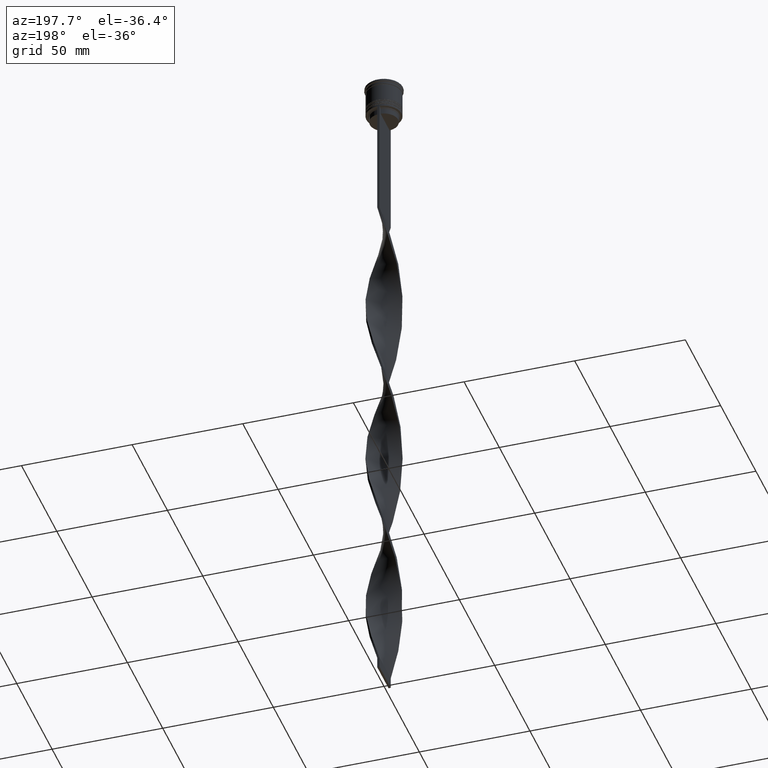
[diagram: clean part render]
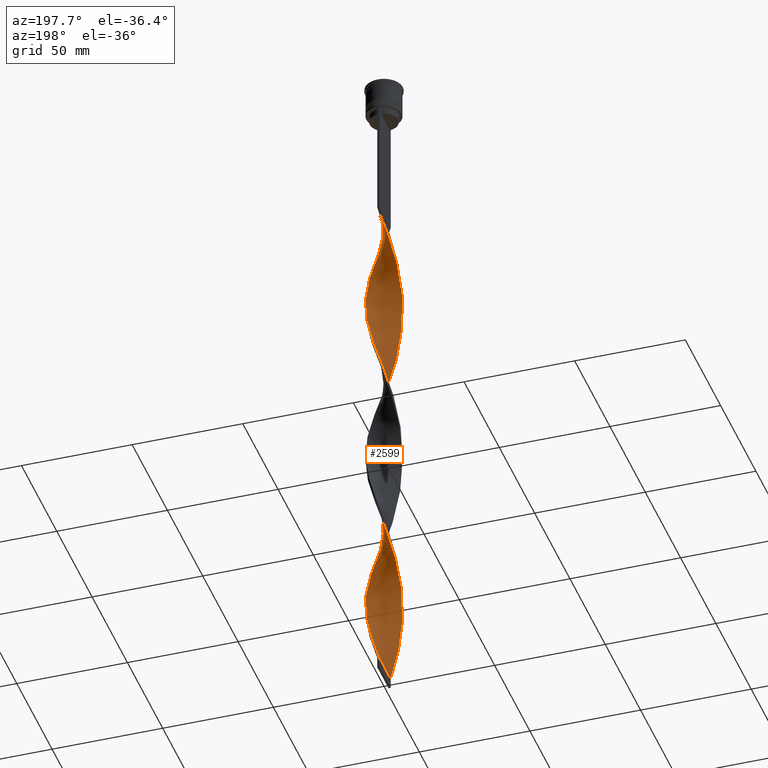
[diagram: same view with one face highlighted and labeled with its STEP entity id]
A machine part, auxiliary view. The second image highlights one B-rep face of the part: STEP entity #2599.
In plain terms, the highlighted face is a freeform B-spline surface patch.
Its self-contained STEP definition (entity closure, byte-faithful):
#3 = CARTESIAN_POINT ( 'NONE',  ( 7.104270692806154308, 3.765275523391978574, -202.5583333333333371 ) ) ;
#14 = CARTESIAN_POINT ( 'NONE',  ( -5.593028810685832575, 5.776330198885578859, -166.4083333333333599 ) ) ;
#18 = CARTESIAN_POINT ( 'NONE',  ( -2.947664213147155543, -7.453943633173751415, -140.3000000000000114 ) ) ;
#43 = CARTESIAN_POINT ( 'NONE',  ( -5.303300858899103964, 6.010407640085652758, -248.7500000000000000 ) ) ;
#44 = CARTESIAN_POINT ( 'NONE',  ( -1.129613654596948624, -7.960649146587686964, -306.9916666666667879 ) ) ;
#47 = CARTESIAN_POINT ( 'NONE',  ( 8.000000000000003553, 0.4999999999999995559, -268.8333333333333712 ) ) ;
#54 = CARTESIAN_POINT ( 'NONE',  ( 3.186420735822192984, 7.355047443376719229, -296.9499999999999886 ) ) ;
#62 = CARTESIAN_POINT ( 'NONE',  ( 3.186420735822187655, -7.355047443376713900, -160.3833333333333258 ) ) ;
#67 = CARTESIAN_POINT ( 'NONE',  ( 7.355047443376719229, -3.186420735822192540, -256.7833333333333599 ) ) ;
#79 = CARTESIAN_POINT ( 'NONE',  ( 7.685929837894279970, -2.361026126641881273, -182.4749999999999943 ) ) ;
#85 = CARTESIAN_POINT ( 'NONE',  ( -0.7576315500242802869, -7.979723957281220414, -224.6500000000000057 ) ) ;
#91 = CARTESIAN_POINT ( 'NONE',  ( 2.607565948252399401, 7.605824193947281486, -298.9583333333334281 ) ) ;
#100 = CARTESIAN_POINT ( 'NONE',  ( -7.221957428453224637, 3.534302299652428037, -258.7916666666666288 ) ) ;
#108 = CARTESIAN_POINT ( 'NONE',  ( 7.979723957281222191, -0.7576315500242788437, -264.8166666666667197 ) ) ;
#120 = CARTESIAN_POINT ( 'NONE',  ( -6.178243328853340266, 5.106790515527257490, -252.7666666666667084 ) ) ;
#126 = CARTESIAN_POINT ( 'NONE',  ( -7.605824193947280598, 2.607565948252403398, -178.4583333333333428 ) ) ;
#134 = CARTESIAN_POINT ( 'NONE',  ( 2.947664213147156875, -7.453943633173757632, -76.03333333333334565 ) ) ;
#141 = CARTESIAN_POINT ( 'NONE',  ( 4.297773521152314480, 6.766028581145818066, -132.2666666666666799 ) ) ;
#146 = CARTESIAN_POINT ( 'NONE',  ( -3.186420735822188544, 7.355047443376713900, -80.05000000000001137 ) ) ;
#155 = CARTESIAN_POINT ( 'NONE',  ( -1.129613654596947514, 7.960649146587694958, -150.3416666666666401 ) ) ;
#163 = CARTESIAN_POINT ( 'NONE',  ( -6.766028581145814513, -4.297773521152308263, -284.9000000000000341 ) ) ;
#172 = CARTESIAN_POINT ( 'NONE',  ( 0.1296136545969461817, -8.039350853412306819, -150.3416666666666401 ) ) ;
#181 = CARTESIAN_POINT ( 'NONE',  ( -2.947664213147155987, 7.453943633173759409, -156.3666666666666458 ) ) ;
#187 = CARTESIAN_POINT ( 'NONE',  ( -5.593028810685829910, -5.776330198885572642, -290.9250000000000682 ) ) ;
#193 = CARTESIAN_POINT ( 'NONE',  ( -0.1296136545969472920, 8.039350853412308595, -70.00833333333335418 ) ) ;
#200 = CARTESIAN_POINT ( 'NONE',  ( 1.129613654596948180, -7.960649146587693181, -70.00833333333335418 ) ) ;
#204 = CARTESIAN_POINT ( 'NONE',  ( 7.762960627548705084, -1.996607696852003677, -100.1333333333333400 ) ) ;
#212 = CARTESIAN_POINT ( 'NONE',  ( 1.385649445451606843, -7.920097061150122464, -154.3583333333333201 ) ) ;
#217 = ORIENTED_EDGE ( 'NONE', *, *, #2812, .T. ) ;
#222 = CARTESIAN_POINT ( 'NONE',  ( -6.010407640085651870, -5.303300858899103076, -288.9166666666666856 ) ) ;
#229 = CARTESIAN_POINT ( 'NONE',  ( 5.303300858899103076, -6.010407640085653647, -168.4166666666666572 ) ) ;
#245 = CARTESIAN_POINT ( 'NONE',  ( -7.605824193947279710, 2.607565948252403398, -178.4583333333333144 ) ) ;
#251 = CARTESIAN_POINT ( 'NONE',  ( -6.427786469485477383, -4.830271518912636175, -286.9083333333333599 ) ) ;
#265 = CARTESIAN_POINT ( 'NONE',  ( -4.620552220368688623, 6.580156458821115883, -162.3916666666666799 ) ) ;
#271 = CARTESIAN_POINT ( 'NONE',  ( 7.762960627548699755, 1.996607696851999680, -196.5333333333333314 ) ) ;
#283 = CARTESIAN_POINT ( 'NONE',  ( 7.605824193947281486, -2.607565948252398957, -258.7916666666666288 ) ) ;
#288 = CARTESIAN_POINT ( 'NONE',  ( 7.453943633173751415, -2.947664213147155987, -180.4666666666666686 ) ) ;
#305 = CARTESIAN_POINT ( 'NONE',  ( -5.303300858899111070, -6.010407640085655423, -208.5833333333333428 ) ) ;
#309 = EDGE_CURVE ( 'NONE', #3027, #814, #765, .T. ) ;
#315 = CARTESIAN_POINT ( 'NONE',  ( 2.947664213147156875, 7.453943633173751415, -220.6333333333333542 ) ) ;
#326 = CARTESIAN_POINT ( 'NONE',  ( 7.920097061150128681, -1.385649445451610173, -262.8083333333332803 ) ) ;
#330 = CARTESIAN_POINT ( 'NONE',  ( -6.901056943637166263, 4.077427260010557220, -96.11666666666667425 ) ) ;
#331 = CARTESIAN_POINT ( 'NONE',  ( -5.303300858899103964, 6.010407640085652758, -248.7500000000000000 ) ) ;
#347 = CARTESIAN_POINT ( 'NONE',  ( -3.186420735822188544, 7.355047443376713900, -80.05000000000001137 ) ) ;
#354 = CARTESIAN_POINT ( 'NONE',  ( -6.178243328853346483, -5.106790515527260155, -204.5666666666666629 ) ) ;
#372 = CARTESIAN_POINT ( 'NONE',  ( 5.593028810685831687, 5.776330198885569089, -210.5916666666666686 ) ) ;
#377 = CARTESIAN_POINT ( 'NONE',  ( 5.106790515527261043, -6.178243328853345595, -244.7333333333333201 ) ) ;
#390 = CARTESIAN_POINT ( 'NONE',  ( 8.039350853412310371, 0.1296136545969493459, -190.5083333333333826 ) ) ;
#395 = CARTESIAN_POINT ( 'NONE',  ( 6.901056943637173369, 4.077427260010559884, -280.8833333333333826 ) ) ;
#404 = CARTESIAN_POINT ( 'NONE',  ( -0.4999999999999997780, 2.666666666666670515, -309.0000000000000000 ) ) ;
#407 = CARTESIAN_POINT ( 'NONE',  ( -1.385649445451607953, 7.920097061150121576, -234.6916666666666629 ) ) ;
#411 = CARTESIAN_POINT ( 'NONE',  ( -7.685929837894287964, -2.361026126641879941, -194.5250000000000341 ) ) ;
#428 = CARTESIAN_POINT ( 'NONE',  ( -1.745319890619416281, -7.823289492240981247, -144.3166666666666629 ) ) ;
#439 = CARTESIAN_POINT ( 'NONE',  ( 5.593028810685833463, -5.776330198885577971, -246.7416666666667027 ) ) ;
#445 = CARTESIAN_POINT ( 'NONE',  ( 7.104270692806156973, -3.765275523391986567, -94.10833333333334849 ) ) ;
#450 = CARTESIAN_POINT ( 'NONE',  ( 8.039350853412315701, -0.1296136545969482357, -106.1583333333333456 ) ) ;
#462 = CARTESIAN_POINT ( 'NONE',  ( 6.901056943637173369, 4.077427260010559884, -120.2166666666666686 ) ) ;
#469 = CARTESIAN_POINT ( 'NONE',  ( 5.776330198885578859, 5.593028810685832575, -126.2416666666666600 ) ) ;
#474 = CARTESIAN_POINT ( 'NONE',  ( -7.685929837894279082, 2.361026126641883938, -102.1416666666666799 ) ) ;
#483 = CARTESIAN_POINT ( 'NONE',  ( 6.178243328853345595, 5.106790515527260155, -124.2333333333333343 ) ) ;
#489 = CARTESIAN_POINT ( 'NONE',  ( 7.960649146587693181, 1.129613654596947958, -110.1749999999999972 ) ) ;
#513 = LINE ( 'NONE', #1144, #2597 ) ;
#514 = CARTESIAN_POINT ( 'NONE',  ( 6.178243328853345595, 5.106790515527260155, -124.2333333333333343 ) ) ;
#519 = CARTESIAN_POINT ( 'NONE',  ( -3.765275523391982126, 7.104270692806152532, -82.05833333333335133 ) ) ;
#532 = CARTESIAN_POINT ( 'NONE',  ( 5.593028810685833463, -5.776330198885577971, -86.07500000000003126 ) ) ;
#540 = CARTESIAN_POINT ( 'NONE',  ( -7.960649146587686964, 1.129613654596948180, -106.1583333333333456 ) ) ;
#552 = CARTESIAN_POINT ( 'NONE',  ( -4.297773521152315368, -6.766028581145818066, -212.6000000000000227 ) ) ;
#560 = CARTESIAN_POINT ( 'NONE',  ( 5.106790515527259267, 6.178243328853339378, -212.6000000000000227 ) ) ;
#577 = CARTESIAN_POINT ( 'NONE',  ( -7.685929837894287964, -2.361026126641879941, -194.5250000000000341 ) ) ;
#583 = CARTESIAN_POINT ( 'NONE',  ( -7.355047443376713900, -3.186420735822188544, -280.8833333333333826 ) ) ;
#595 = CARTESIAN_POINT ( 'NONE',  ( 5.593028810685833463, -5.776330198885577971, -246.7416666666666742 ) ) ;
#599 = CARTESIAN_POINT ( 'NONE',  ( -5.593028810685829910, -5.776330198885572642, -130.2583333333333826 ) ) ;
#600 = CARTESIAN_POINT ( 'NONE',  ( 6.010407640085652758, 5.303300858899102188, -208.5833333333333428 ) ) ;
#614 = CARTESIAN_POINT ( 'NONE',  ( 7.823289492240990128, 1.745319890619416059, -272.8500000000000227 ) ) ;
#619 = CARTESIAN_POINT ( 'NONE',  ( -4.830271518912637951, 6.427786469485478271, -86.07500000000003126 ) ) ;
#620 = CARTESIAN_POINT ( 'NONE',  ( 5.593028810685831687, 5.776330198885569089, -210.5916666666666686 ) ) ;
#640 = CARTESIAN_POINT ( 'NONE',  ( 6.766028581145818954, -4.297773521152313592, -252.7666666666667084 ) ) ;
#645 = EDGE_CURVE ( 'NONE', #2717, #668, #513, .T. ) ;
#648 = CARTESIAN_POINT ( 'NONE',  ( -2.607565948252395849, 7.605824193947275269, -238.7083333333333144 ) ) ;
#668 = VERTEX_POINT ( 'NONE', #942 ) ;
#669 = CARTESIAN_POINT ( 'NONE',  ( -7.823289492240991905, -1.745319890619414949, -192.5166666666666799 ) ) ;
#680 = CARTESIAN_POINT ( 'NONE',  ( 6.580156458821111443, -4.620552220368684182, -174.4416666666666629 ) ) ;
#688 = CARTESIAN_POINT ( 'NONE',  ( -3.186420735822193873, -7.355047443376719229, -216.6166666666666742 ) ) ;
#697 = CARTESIAN_POINT ( 'NONE',  ( -0.4999999999999991673, 8.000000000000003553, -309.0000000000000000 ) ) ;
#705 = CARTESIAN_POINT ( 'NONE',  ( 5.303300858899103076, -6.010407640085653647, -168.4166666666666572 ) ) ;
#709 = CARTESIAN_POINT ( 'NONE',  ( 7.453943633173759409, 2.947664213147156431, -276.8666666666667311 ) ) ;
#719 = CARTESIAN_POINT ( 'NONE',  ( 4.077427260010558108, 6.901056943637166263, -216.6166666666666742 ) ) ;
#722 = CARTESIAN_POINT ( 'NONE',  ( 6.178243328853345595, 5.106790515527260155, -284.9000000000000341 ) ) ;
#735 = CARTESIAN_POINT ( 'NONE',  ( 3.765275523391981682, -7.104270692806153420, -162.3916666666666799 ) ) ;
#740 = CARTESIAN_POINT ( 'NONE',  ( -3.765275523391984791, -7.104270692806157861, -214.6083333333333769 ) ) ;
#745 = ORIENTED_EDGE ( 'NONE', *, *, #309, .F. ) ;
#747 = CARTESIAN_POINT ( 'NONE',  ( 1.745319890619416503, -7.823289492240990128, -72.01666666666667993 ) ) ;
#755 = CARTESIAN_POINT ( 'NONE',  ( -1.996607696852001013, 7.762960627548698866, -236.6999999999999886 ) ) ;
#757 = CARTESIAN_POINT ( 'NONE',  ( 3.765275523391986567, 7.104270692806156973, -294.9416666666667197 ) ) ;
#765 = B_SPLINE_CURVE_WITH_KNOTS ( 'NONE', 3,
 ( #3906, #2975, #404, #2593 ),
 .UNSPECIFIED., .F., .F.,
 ( 4, 4 ),
 ( 0.000000000000000000, 1.000000000000000000 ),
 .UNSPECIFIED. ) ;
#766 = CARTESIAN_POINT ( 'NONE',  ( -6.178243328853340266, 5.106790515527257490, -92.09999999999999432 ) ) ;
#778 = CARTESIAN_POINT ( 'NONE',  ( 2.361026126641884826, -7.685929837894286187, -74.02500000000000568 ) ) ;
#779 = CARTESIAN_POINT ( 'NONE',  ( 2.607565948252399401, 7.605824193947282374, -298.9583333333333712 ) ) ;
#785 = CARTESIAN_POINT ( 'NONE',  ( -2.361026126641883938, -7.685929837894279082, -142.3083333333333371 ) ) ;
#792 = CARTESIAN_POINT ( 'NONE',  ( 7.823289492240990128, 1.745319890619416059, -112.1833333333333229 ) ) ;
#797 = CARTESIAN_POINT ( 'NONE',  ( -2.947664213147155543, -7.453943633173751415, -300.9666666666666401 ) ) ;
#814 = VERTEX_POINT ( 'NONE', #2853 ) ;
#815 = CARTESIAN_POINT ( 'NONE',  ( 7.355047443376719229, -3.186420735822192540, -96.11666666666667425 ) ) ;
#821 = CARTESIAN_POINT ( 'NONE',  ( -1.745319890619416281, -7.823289492240981247, -304.9833333333333485 ) ) ;
#829 = CARTESIAN_POINT ( 'NONE',  ( -4.830271518912637063, 6.427786469485478271, -86.07500000000003126 ) ) ;
#840 = CARTESIAN_POINT ( 'NONE',  ( 0.7576315500242793988, 7.979723957281220414, -144.3166666666666629 ) ) ;
#845 = CARTESIAN_POINT ( 'NONE',  ( -2.607565948252395849, 7.605824193947275269, -78.04166666666667140 ) ) ;
#858 = CARTESIAN_POINT ( 'NONE',  ( 7.355047443376719229, -3.186420735822192540, -96.11666666666667425 ) ) ;
#866 = CARTESIAN_POINT ( 'NONE',  ( -7.960649146587686964, 1.129613654596948180, -266.8249999999999886 ) ) ;
#880 = CARTESIAN_POINT ( 'NONE',  ( -3.534302299652429813, 7.221957428453232630, -158.3750000000000284 ) ) ;
#885 = CARTESIAN_POINT ( 'NONE',  ( -7.355047443376713900, -3.186420735822188544, -120.2166666666666686 ) ) ;
#887 = CARTESIAN_POINT ( 'NONE',  ( -6.178243328853340266, 5.106790515527257490, -252.7666666666667084 ) ) ;
#904 = CARTESIAN_POINT ( 'NONE',  ( -8.000000000000003553, -0.4999999999999986122, -188.5000000000000000 ) ) ;
#909 = CARTESIAN_POINT ( 'NONE',  ( -7.685929837894279082, 2.361026126641883938, -102.1416666666666941 ) ) ;
#911 = CARTESIAN_POINT ( 'NONE',  ( 1.745319890619417169, 7.823289492240981247, -224.6500000000000057 ) ) ;
#923 = CARTESIAN_POINT ( 'NONE',  ( -1.385649445451607953, -7.920097061150128681, -222.6416666666667084 ) ) ;
#927 = CARTESIAN_POINT ( 'NONE',  ( -4.297773521152309151, 6.766028581145814513, -84.06666666666667709 ) ) ;
#929 = CARTESIAN_POINT ( 'NONE',  ( 7.960649146587686964, -1.129613654596952621, -186.4916666666667027 ) ) ;
#942 = CARTESIAN_POINT ( 'NONE',  ( 0.5000000000000001110, 7.999999999999996447, -68.00000000000000000 ) ) ;
#944 = CARTESIAN_POINT ( 'NONE',  ( 3.534302299652430257, -7.221957428453231742, -238.7083333333333144 ) ) ;
#951 = CARTESIAN_POINT ( 'NONE',  ( -4.077427260010557220, -6.901056943637166263, -296.9499999999999886 ) ) ;
#967 = CARTESIAN_POINT ( 'NONE',  ( -7.823289492240991905, -1.745319890619414949, -192.5166666666666799 ) ) ;
#986 = CARTESIAN_POINT ( 'NONE',  ( 1.385649445451607065, -7.920097061150121576, -154.3583333333332916 ) ) ;
#992 = CARTESIAN_POINT ( 'NONE',  ( 7.920097061150129569, -1.385649445451610173, -262.8083333333333371 ) ) ;
#1005 = CARTESIAN_POINT ( 'NONE',  ( -5.776330198885572642, 5.593028810685829022, -250.7583333333333258 ) ) ;
#1011 = CARTESIAN_POINT ( 'NONE',  ( -7.920097061150129569, 1.385649445451607287, -182.4749999999999943 ) ) ;
#1028 = CARTESIAN_POINT ( 'NONE',  ( 2.607565948252394961, -7.605824193947276157, -158.3750000000000284 ) ) ;
#1033 = CARTESIAN_POINT ( 'NONE',  ( 7.605824193947282374, -2.607565948252398957, -258.7916666666666288 ) ) ;
#1045 = CARTESIAN_POINT ( 'NONE',  ( 0.7576315500242762901, -7.979723957281215085, -152.3499999999999943 ) ) ;
#1051 = CARTESIAN_POINT ( 'NONE',  ( 5.776330198885578859, 5.593028810685832575, -286.9083333333333599 ) ) ;
#1064 = CARTESIAN_POINT ( 'NONE',  ( 5.106790515527259267, 6.178243328853339378, -212.6000000000000227 ) ) ;
#1070 = CARTESIAN_POINT ( 'NONE',  ( -4.297773521152315368, -6.766028581145818066, -212.6000000000000227 ) ) ;
#1078 = CARTESIAN_POINT ( 'NONE',  ( 5.776330198885578859, 5.593028810685832575, -126.2416666666666742 ) ) ;
#1086 = CARTESIAN_POINT ( 'NONE',  ( 7.453943633173759409, 2.947664213147156431, -116.2000000000000028 ) ) ;
#1093 = CARTESIAN_POINT ( 'NONE',  ( 0.5000000000000001110, 7.999999999999996447, -68.00000000000000000 ) ) ;
#1099 = CARTESIAN_POINT ( 'NONE',  ( 3.765275523391986567, 7.104270692806156973, -134.2750000000000341 ) ) ;
#1105 = CARTESIAN_POINT ( 'NONE',  ( -3.534302299652428481, -7.221957428453224637, -298.9583333333334281 ) ) ;
#1111 = CARTESIAN_POINT ( 'NONE',  ( -1.745319890619416281, -7.823289492240981247, -144.3166666666666629 ) ) ;
#1122 = CARTESIAN_POINT ( 'NONE',  ( 4.830271518912643280, 6.427786469485483600, -130.2583333333333826 ) ) ;
#1129 = CARTESIAN_POINT ( 'NONE',  ( -0.5000000000000011102, -7.999999999999996447, -148.3333333333333428 ) ) ;
#1138 = CARTESIAN_POINT ( 'NONE',  ( 2.361026126641884826, -7.685929837894286187, -74.02500000000000568 ) ) ;
#1144 = CARTESIAN_POINT ( 'NONE',  ( 0.5000000000000001110, -8.000000000000003553, -68.00000000000000000 ) ) ;
#1145 = CARTESIAN_POINT ( 'NONE',  ( 7.920097061150128681, -1.385649445451610173, -102.1416666666666941 ) ) ;
#1169 = CARTESIAN_POINT ( 'NONE',  ( 5.106790515527261043, -6.178243328853345595, -84.06666666666667709 ) ) ;
#1175 = CARTESIAN_POINT ( 'NONE',  ( -6.580156458821108778, 4.620552220368686847, -254.7749999999999773 ) ) ;
#1186 = CARTESIAN_POINT ( 'NONE',  ( 1.129613654596948402, -7.960649146587693181, -230.6750000000000114 ) ) ;
#1191 = CARTESIAN_POINT ( 'NONE',  ( -5.776330198885572642, 5.593028810685829022, -90.09166666666666856 ) ) ;
#1193 = CARTESIAN_POINT ( 'NONE',  ( -3.534302299652428481, -7.221957428453224637, -298.9583333333333712 ) ) ;
#1207 = CARTESIAN_POINT ( 'NONE',  ( -4.830271518912646833, -6.427786469485480048, -210.5916666666666686 ) ) ;
#1214 = FACE_OUTER_BOUND ( 'NONE', #2339, .T. ) ;
#1217 = CARTESIAN_POINT ( 'NONE',  ( -3.765275523391982126, 7.104270692806152532, -242.7250000000000227 ) ) ;
#1231 = CARTESIAN_POINT ( 'NONE',  ( 7.979723957281222191, -0.7576315500242788437, -264.8166666666667197 ) ) ;
#1235 = CARTESIAN_POINT ( 'NONE',  ( -6.766028581145814513, -4.297773521152308263, -284.9000000000000341 ) ) ;
#1249 = CARTESIAN_POINT ( 'NONE',  ( 6.901056943637173369, 4.077427260010559884, -280.8833333333333826 ) ) ;
#1255 = CARTESIAN_POINT ( 'NONE',  ( -5.593028810685829910, -5.776330198885572642, -290.9250000000000682 ) ) ;
#1265 = CARTESIAN_POINT ( 'NONE',  ( -3.186420735822193873, -7.355047443376719229, -216.6166666666666742 ) ) ;
#1290 = CARTESIAN_POINT ( 'NONE',  ( 5.776330198885578859, 5.593028810685832575, -286.9083333333334167 ) ) ;
#1294 = CARTESIAN_POINT ( 'NONE',  ( 6.178243328853339378, -5.106790515527258378, -172.4333333333333371 ) ) ;
#1299 = CARTESIAN_POINT ( 'NONE',  ( 7.823289492240990128, 1.745319890619416059, -272.8500000000000227 ) ) ;
#1304 = CARTESIAN_POINT ( 'NONE',  ( 0.7576315500242793988, 7.979723957281220414, -304.9833333333333485 ) ) ;
#1311 = CARTESIAN_POINT ( 'NONE',  ( 6.427786469485477383, 4.830271518912640616, -206.5750000000000171 ) ) ;
#1316 = CARTESIAN_POINT ( 'NONE',  ( -5.303300858899111070, -6.010407640085655423, -208.5833333333333428 ) ) ;
#1323 = CARTESIAN_POINT ( 'NONE',  ( 4.297773521152314480, 6.766028581145818066, -292.9333333333333371 ) ) ;
#1330 = CARTESIAN_POINT ( 'NONE',  ( 4.830271518912637063, -6.427786469485479159, -166.4083333333333599 ) ) ;
#1338 = CARTESIAN_POINT ( 'NONE',  ( -6.901056943637174257, -4.077427260010558996, -200.5500000000000114 ) ) ;
#1353 = CARTESIAN_POINT ( 'NONE',  ( -2.607565948252395849, 7.605824193947274381, -238.7083333333333144 ) ) ;
#1360 = CARTESIAN_POINT ( 'NONE',  ( 7.685929837894287076, 2.361026126641884382, -274.8583333333332916 ) ) ;
#1369 = CARTESIAN_POINT ( 'NONE',  ( -7.453943633173751415, 2.947664213147155543, -260.8000000000000114 ) ) ;
#1376 = CARTESIAN_POINT ( 'NONE',  ( -6.580156458821117660, -4.620552220368685958, -202.5583333333333371 ) ) ;
#1383 = CARTESIAN_POINT ( 'NONE',  ( 8.039350853412315701, -0.1296136545969482634, -106.1583333333333456 ) ) ;
#1386 =( BOUNDED_CURVE ( )  B_SPLINE_CURVE ( 2, ( #3601, #200, #747, #1138, #134, #2651, #3629, #2405, #2380, #2013, #2316, #3666, #3357, #445, #815, #3287, #1428, #1693, #2971, #1383, #2031, #3961, #792, #2051, #2677, #2077, #462, #3935, #483, #1078, #1448, #2340, #3016, #1099, #2719, #2360, #3306, #1711, #2990, #1405, #3999, #155, #3647, #3328, #181, #2699, #3979, #1756, #1921, #3912, #1687, #1982, #3258, #2567, #1628, #126, #3539, #1011, #1606, #3241, #2644, #3223, #669, #411, #2275, #2255, #1338, #1376, #354, #2003, #1316, #1961, #1070, #740, #688, #3562, #2906, #2888, #85, #2606, #3281, #3930, #1663, #2292, #1941, #3898, #2332, #3202, #377, #439, #3855, #2947, #1646, #2966, #67, #1033, #2583, #992, #108, #3874, #47, #2626, #1299, #1360, #709, #3578, #395, #2923, #722, #1051, #2309, #3597, #3925, #757, #1717, #779, #2304, #1392, #3593, #2366, #1742 ),
 .UNSPECIFIED., .F., .T. ) 
 B_SPLINE_CURVE_WITH_KNOTS ( ( 3, 2, 2, 2, 2, 2, 2, 2, 2, 2, 2, 2, 2, 2, 2, 2, 2, 2, 2, 2, 2, 2, 2, 2, 2, 2, 2, 2, 2, 2, 2, 2, 2, 2, 2, 2, 2, 2, 2, 2, 2, 2, 2, 2, 2, 2, 2, 2, 2, 2, 2, 2, 2, 2, 2, 2, 2, 2, 2, 2, 3 ),
 ( 0.000000000000000000, 0.01250000000000000243, 0.02500000000000000486, 0.03749999999999999861, 0.05000000000000000971, 0.06250000000000000000, 0.07499999999999999722, 0.08749999999999998057, 0.1000000000000000194, 0.1125000000000000028, 0.1250000000000000000, 0.1375000000000000111, 0.1499999999999999944, 0.1625000000000000056, 0.1749999999999999611, 0.1875000000000000000, 0.2000000000000000389, 0.2124999999999999944, 0.2250000000000000056, 0.2374999999999999611, 0.2500000000000000000, 0.2625000000000000111, 0.2750000000000000222, 0.2874999999999999778, 0.2999999999999999889, 0.3125000000000000000, 0.3250000000000000111, 0.3375000000000000777, 0.3499999999999999223, 0.3624999999999999889, 0.3750000000000000000, 0.3875000000000000111, 0.4000000000000000777, 0.4124999999999999223, 0.4249999999999999889, 0.4375000000000000000, 0.4500000000000000111, 0.4625000000000000777, 0.4749999999999999223, 0.4874999999999999889, 0.5000000000000000000, 0.5124999999999999556, 0.5250000000000000222, 0.5374999999999999778, 0.5500000000000000444, 0.5625000000000000000, 0.5749999999999999556, 0.5875000000000000222, 0.5999999999999999778, 0.6125000000000000444, 0.6250000000000000000, 0.6374999999999999556, 0.6500000000000000222, 0.6624999999999999778, 0.6750000000000001554, 0.6875000000000000000, 0.6999999999999998446, 0.7125000000000000222, 0.7249999999999999778, 0.7375000000000001554, 0.7500000000000000000 ),
 .UNSPECIFIED. ) 
 CURVE ( )  GEOMETRIC_REPRESENTATION_ITEM ( )  RATIONAL_B_SPLINE_CURVE ( ( 1.000000000000000000, 0.9969173337331279638, 1.000000000000000000, 0.9969173337331279638, 1.000000000000000000, 0.9969173337331279638, 1.000000000000000000, 0.9969173337331279638, 1.000000000000000000, 0.9969173337331279638, 1.000000000000000000, 0.9969173337331279638, 1.000000000000000000, 0.9969173337331279638, 1.000000000000000000, 0.9969173337331279638, 1.000000000000000000, 0.9969173337331279638, 1.000000000000000000, 0.9969173337331279638, 1.000000000000000000, 0.9969173337331279638, 1.000000000000000000, 0.9969173337331279638, 1.000000000000000000, 0.9969173337331279638, 1.000000000000000000, 0.9969173337331279638, 1.000000000000000000, 0.9969173337331279638, 1.000000000000000000, 0.9969173337331279638, 1.000000000000000000, 0.9969173337331279638, 1.000000000000000000, 0.9969173337331279638, 1.000000000000000000, 0.9969173337331279638, 1.000000000000000000, 0.9969173337331279638, 1.000000000000000000, 0.9969173337331279638, 1.000000000000000000, 0.9969173337331279638, 1.000000000000000000, 0.9969173337331279638, 1.000000000000000000, 0.9969173337331279638, 1.000000000000000000, 0.9969173337331279638, 1.000000000000000000, 0.9969173337331279638, 1.000000000000000000, 0.9969173337331279638, 1.000000000000000000, 0.9969173337331279638, 1.000000000000000000, 0.9969173337331279638, 1.000000000000000000, 0.9969173337331279638, 1.000000000000000000, 0.9969173337331279638, 1.000000000000000000, 0.9969173337331279638, 1.000000000000000000, 0.9969173337331279638, 1.000000000000000000, 0.9969173337331279638, 1.000000000000000000, 0.9969173337331279638, 1.000000000000000000, 0.9969173337331279638, 1.000000000000000000, 0.9969173337331279638, 1.000000000000000000, 0.9969173337331279638, 1.000000000000000000, 0.9969173337331279638, 1.000000000000000000, 0.9969173337331279638, 1.000000000000000000, 0.9969173337331279638, 1.000000000000000000, 0.9969173337331279638, 1.000000000000000000, 0.9969173337331279638, 1.000000000000000000, 0.9969173337331279638, 1.000000000000000000, 0.9969173337331279638, 1.000000000000000000, 0.9969173337331279638, 1.000000000000000000, 0.9969173337331279638, 1.000000000000000000, 0.9969173337331279638, 1.000000000000000000, 0.9969173337331279638, 1.000000000000000000, 0.9969173337331279638, 1.000000000000000000, 0.9969173337331279638, 1.000000000000000000, 0.9969173337331279638, 1.000000000000000000, 0.9969173337331279638, 1.000000000000000000, 0.9969173337331279638, 1.000000000000000000, 0.9969173337331279638, 1.000000000000000000, 0.9969173337331279638, 1.000000000000000000, 0.9969173337331279638, 1.000000000000000000, 0.9969173337331279638, 1.000000000000000000, 0.9969173337331279638, 1.000000000000000000, 0.9969173337331279638, 1.000000000000000000 ) ) 
 REPRESENTATION_ITEM ( '' )  );
#1391 = CARTESIAN_POINT ( 'NONE',  ( 8.000000000000003553, 0.4999999999999995559, -108.1666666666666714 ) ) ;
#1392 = CARTESIAN_POINT ( 'NONE',  ( 1.385649445451610617, 7.920097061150129569, -302.9750000000000227 ) ) ;
#1396 = CARTESIAN_POINT ( 'NONE',  ( -7.762960627548699755, -1.996607696852000569, -116.2000000000000028 ) ) ;
#1405 = CARTESIAN_POINT ( 'NONE',  ( 0.1296136545969487908, 8.039350853412315701, -146.3250000000000171 ) ) ;
#1414 = CARTESIAN_POINT ( 'NONE',  ( -2.361026126641883938, -7.685929837894279082, -302.9750000000000227 ) ) ;
#1428 = CARTESIAN_POINT ( 'NONE',  ( 7.762960627548705084, -1.996607696852003677, -100.1333333333333400 ) ) ;
#1433 = CARTESIAN_POINT ( 'NONE',  ( 6.901056943637173369, 4.077427260010559884, -120.2166666666666686 ) ) ;
#1440 = CARTESIAN_POINT ( 'NONE',  ( -5.776330198885572642, 5.593028810685829022, -90.09166666666666856 ) ) ;
#1448 = CARTESIAN_POINT ( 'NONE',  ( 5.303300858899110182, 6.010407640085656311, -128.2500000000000000 ) ) ;
#1452 = CARTESIAN_POINT ( 'NONE',  ( 1.385649445451610617, 7.920097061150128681, -142.3083333333333371 ) ) ;
#1459 = CARTESIAN_POINT ( 'NONE',  ( 6.178243328853339378, -5.106790515527258378, -172.4333333333333371 ) ) ;
#1477 = CARTESIAN_POINT ( 'NONE',  ( -4.620552220368686847, -6.580156458821108778, -294.9416666666667197 ) ) ;
#1485 = CARTESIAN_POINT ( 'NONE',  ( 6.901056943637166263, -4.077427260010558108, -176.4499999999999886 ) ) ;
#1498 = CARTESIAN_POINT ( 'NONE',  ( -2.607565948252403842, -7.605824193947279710, -218.6250000000000568 ) ) ;
#1504 = CARTESIAN_POINT ( 'NONE',  ( -5.106790515527258378, -6.178243328853339378, -292.9333333333333371 ) ) ;
#1516 = CARTESIAN_POINT ( 'NONE',  ( 4.077427260010559884, -6.901056943637173369, -240.7166666666666686 ) ) ;
#1521 = CARTESIAN_POINT ( 'NONE',  ( 1.129613654596953065, 7.960649146587686964, -226.6583333333333883 ) ) ;
#1533 = CARTESIAN_POINT ( 'NONE',  ( -0.1296136545969532317, -8.039350853412315701, -226.6583333333333883 ) ) ;
#1541 = CARTESIAN_POINT ( 'NONE',  ( -1.385649445451607953, 7.920097061150121576, -74.02500000000000568 ) ) ;
#1543 = CARTESIAN_POINT ( 'NONE',  ( -7.979723957281215085, -0.7576315500242769563, -272.8500000000000227 ) ) ;
#1559 = CARTESIAN_POINT ( 'NONE',  ( -6.766028581145818066, 4.297773521152314480, -172.4333333333333371 ) ) ;
#1565 = CARTESIAN_POINT ( 'NONE',  ( -3.765275523391982571, 7.104270692806153420, -82.05833333333336554 ) ) ;
#1566 = CARTESIAN_POINT ( 'NONE',  ( 4.620552220368685070, 6.580156458821110554, -214.6083333333333769 ) ) ;
#1575 = CARTESIAN_POINT ( 'NONE',  ( 7.221957428453231742, 3.534302299652429813, -278.8750000000000000 ) ) ;
#1580 = CARTESIAN_POINT ( 'NONE',  ( -7.221957428453224637, 3.534302299652428037, -98.12500000000002842 ) ) ;
#1581 = CARTESIAN_POINT ( 'NONE',  ( -5.776330198885572642, 5.593028810685829022, -250.7583333333332973 ) ) ;
#1598 = CARTESIAN_POINT ( 'NONE',  ( 1.129613654596953065, 7.960649146587686964, -226.6583333333333883 ) ) ;
#1606 = CARTESIAN_POINT ( 'NONE',  ( -7.979723957281220414, 0.7576315500242798429, -184.4833333333333201 ) ) ;
#1622 = CARTESIAN_POINT ( 'NONE',  ( 6.010407640085652758, 5.303300858899102188, -208.5833333333333428 ) ) ;
#1628 = CARTESIAN_POINT ( 'NONE',  ( -7.355047443376719229, 3.186420735822193429, -176.4499999999999886 ) ) ;
#1642 = CARTESIAN_POINT ( 'NONE',  ( -6.580156458821108778, 4.620552220368686847, -254.7749999999999488 ) ) ;
#1646 = CARTESIAN_POINT ( 'NONE',  ( 6.766028581145818954, -4.297773521152313592, -252.7666666666667084 ) ) ;
#1650 = CARTESIAN_POINT ( 'NONE',  ( 4.830271518912643280, 6.427786469485483600, -290.9250000000000682 ) ) ;
#1655 = CARTESIAN_POINT ( 'NONE',  ( -3.186420735822188544, 7.355047443376713900, -240.7166666666666686 ) ) ;
#1663 = CARTESIAN_POINT ( 'NONE',  ( 1.745319890619416503, -7.823289492240990128, -232.6833333333333371 ) ) ;
#1680 = CARTESIAN_POINT ( 'NONE',  ( -7.823289492240983023, 1.745319890619415837, -264.8166666666667197 ) ) ;
#1687 = CARTESIAN_POINT ( 'NONE',  ( -6.010407640085656311, 5.303300858899110182, -168.4166666666666572 ) ) ;
#1693 = CARTESIAN_POINT ( 'NONE',  ( 7.920097061150129569, -1.385649445451610173, -102.1416666666666799 ) ) ;
#1698 = CARTESIAN_POINT ( 'NONE',  ( -0.5000000000000011102, -7.999999999999996447, -309.0000000000000000 ) ) ;
#1703 = CARTESIAN_POINT ( 'NONE',  ( -7.221957428453224637, 3.534302299652428037, -98.12500000000001421 ) ) ;
#1711 = CARTESIAN_POINT ( 'NONE',  ( 1.385649445451610617, 7.920097061150129569, -142.3083333333333371 ) ) ;
#1716 = CARTESIAN_POINT ( 'NONE',  ( 1.996607696852004121, 7.762960627548705084, -140.3000000000000114 ) ) ;
#1717 = CARTESIAN_POINT ( 'NONE',  ( 3.186420735822192984, 7.355047443376719229, -296.9499999999999886 ) ) ;
#1721 = CARTESIAN_POINT ( 'NONE',  ( -7.104270692806152532, -3.765275523391982126, -122.2250000000000085 ) ) ;
#1740 = CARTESIAN_POINT ( 'NONE',  ( 7.823289492240990128, 1.745319890619416059, -112.1833333333333229 ) ) ;
#1742 = CARTESIAN_POINT ( 'NONE',  ( -0.4999999999999991673, 8.000000000000003553, -309.0000000000000000 ) ) ;
#1756 = CARTESIAN_POINT ( 'NONE',  ( -4.620552220368688623, 6.580156458821115883, -162.3916666666666799 ) ) ;
#1761 = CARTESIAN_POINT ( 'NONE',  ( 3.765275523391987011, 7.104270692806157861, -134.2750000000000341 ) ) ;
#1769 = CARTESIAN_POINT ( 'NONE',  ( -4.077427260010557220, -6.901056943637166263, -136.2833333333333314 ) ) ;
#1778 = CARTESIAN_POINT ( 'NONE',  ( -1.745319890619415393, 7.823289492240990128, -152.3499999999999943 ) ) ;
#1784 = CARTESIAN_POINT ( 'NONE',  ( -0.7576315500242774004, 7.979723957281215085, -72.01666666666667993 ) ) ;
#1797 = CARTESIAN_POINT ( 'NONE',  ( -7.960649146587693181, -1.129613654596950623, -190.5083333333333826 ) ) ;
#1807 = CARTESIAN_POINT ( 'NONE',  ( -7.104270692806152532, -3.765275523391982126, -282.8916666666667084 ) ) ;
#1823 = CARTESIAN_POINT ( 'NONE',  ( -6.010407640085656311, 5.303300858899110182, -168.4166666666666572 ) ) ;
#1829 = CARTESIAN_POINT ( 'NONE',  ( 7.221957428453222860, -3.534302299652431589, -178.4583333333333428 ) ) ;
#1845 = CARTESIAN_POINT ( 'NONE',  ( 7.355047443376719229, -3.186420735822192540, -256.7833333333333599 ) ) ;
#1850 = CARTESIAN_POINT ( 'NONE',  ( -4.620552220368686847, -6.580156458821108778, -134.2750000000000341 ) ) ;
#1851 = CARTESIAN_POINT ( 'NONE',  ( 4.077427260010558108, 6.901056943637166263, -216.6166666666666742 ) ) ;
#1867 = CARTESIAN_POINT ( 'NONE',  ( -7.979723957281220414, 0.7576315500242798429, -184.4833333333333201 ) ) ;
#1873 = CARTESIAN_POINT ( 'NONE',  ( -8.039350853412308595, -0.1296136545969467369, -270.8416666666666401 ) ) ;
#1889 = CARTESIAN_POINT ( 'NONE',  ( 7.685929837894287076, 2.361026126641884382, -274.8583333333332916 ) ) ;
#1896 = CARTESIAN_POINT ( 'NONE',  ( -0.7576315500242774004, 7.979723957281215085, -72.01666666666667993 ) ) ;
#1900 = CARTESIAN_POINT ( 'NONE',  ( 7.685929837894279970, -2.361026126641881273, -182.4749999999999943 ) ) ;
#1909 = CARTESIAN_POINT ( 'NONE',  ( 0.1296136545969488185, 8.039350853412315701, -306.9916666666667311 ) ) ;
#1921 = CARTESIAN_POINT ( 'NONE',  ( -5.106790515527260155, 6.178243328853345595, -164.3999999999999773 ) ) ;
#1933 = CARTESIAN_POINT ( 'NONE',  ( 7.221957428453222860, -3.534302299652432033, -178.4583333333333144 ) ) ;
#1941 = CARTESIAN_POINT ( 'NONE',  ( 2.947664213147156875, -7.453943633173757632, -236.6999999999999886 ) ) ;
#1957 = CARTESIAN_POINT ( 'NONE',  ( 0.5000000000000001110, 7.999999999999996447, -228.6666666666666856 ) ) ;
#1961 = CARTESIAN_POINT ( 'NONE',  ( -4.830271518912645945, -6.427786469485479159, -210.5916666666666686 ) ) ;
#1973 =( BOUNDED_SURFACE ( )  B_SPLINE_SURFACE ( 1, 2, ( 
 ( #2496, #3805, #1896, #1541, #3159, #2187, #347, #1565, #927, #619, #2539, #1191, #3180, #2234, #330, #1580, #2794, #909, #3515, #4076, #3133, #3741, #3787, #2457, #2776, #2171, #885, #2151, #3432, #3451, #2841, #599, #2861, #1850, #2819, #4101, #18, #2561, #428, #3254, #2879, #3889, #1045, #986, #1995, #1028, #62, #735, #2577, #1330, #705, #2266, #1294, #680, #2959, #1933, #2919, #79, #2250, #2638, #2287, #390, #2018, #3533, #3216, #3270, #2595, #3924, #3574, #1311, #1622, #372, #1064, #2303, #719, #3237, #3553, #3592, #3868, #1598, #1957, #3850, #1977, #407, #755, #1353, #1655, #2901, #2935, #2323, #43, #1005, #120, #1642, #3908, #100, #1369, #2619, #1680, #3611, #3292, #2723, #3966, #2432, #3945, #3652, #2748, #3671, #163, #3062, #222, #187, #3719, #1477, #2996, #1105, #797, #1414, #821, #3634, #1698 ),
 ( #2685, #2347, #2084, #778, #4030, #2038, #3362, #4003, #1169, #532, #3313, #2057, #2365, #3984, #858, #3334, #204, #1145, #3697, #450, #1391, #489, #1740, #3042, #1086, #3024, #1433, #2704, #514, #469, #2977, #1122, #141, #1761, #2412, #2384, #1716, #1452, #840, #2124, #2105, #3381, #1778, #2657, #3491, #880, #2471, #265, #2810, #14, #1823, #3149, #1559, #2513, #3402, #245, #3447, #4069, #1867, #4049, #904, #1797, #967, #577, #3174, #2534, #3089, #3735, #3782, #3825, #305, #1207, #552, #3760, #1265, #1498, #2205, #923, #2772, #1533, #2836, #1186, #3801, #4093, #3110, #944, #1516, #3129, #2167, #595, #2449, #2143, #640, #3427, #1845, #283, #2790, #326, #1231, #2492, #2183, #3466, #614, #1889, #4112, #1575, #1249, #2856, #2244, #1290, #3263, #1650, #1323, #3860, #54, #91, #3209, #2227, #1304, #1909, #697 ) ),
 .UNSPECIFIED., .F., .F., .F. ) 
 B_SPLINE_SURFACE_WITH_KNOTS ( ( 2, 2 ),
 ( 3, 2, 2, 2, 2, 2, 2, 2, 2, 2, 2, 2, 2, 2, 2, 2, 2, 2, 2, 2, 2, 2, 2, 2, 2, 2, 2, 2, 2, 2, 2, 2, 2, 2, 2, 2, 2, 2, 2, 2, 2, 2, 2, 2, 2, 2, 2, 2, 2, 2, 2, 2, 2, 2, 2, 2, 2, 2, 2, 2, 3 ),
 ( 0.000000000000000000, 1.000000000000000000 ),
 ( 0.000000000000000000, 0.01250000000000000069, 0.02500000000000000139, 0.03749999999999999861, 0.05000000000000000278, 0.06250000000000000000, 0.07499999999999999722, 0.08749999999999999445, 0.1000000000000000056, 0.1125000000000000028, 0.1250000000000000000, 0.1375000000000000111, 0.1499999999999999944, 0.1625000000000000056, 0.1749999999999999889, 0.1875000000000000000, 0.2000000000000000111, 0.2124999999999999944, 0.2250000000000000056, 0.2374999999999999889, 0.2500000000000000000, 0.2625000000000000111, 0.2750000000000000222, 0.2874999999999999778, 0.2999999999999999889, 0.3125000000000000000, 0.3250000000000000111, 0.3375000000000000222, 0.3499999999999999778, 0.3624999999999999889, 0.3750000000000000000, 0.3875000000000000111, 0.4000000000000000222, 0.4124999999999999778, 0.4249999999999999889, 0.4375000000000000000, 0.4500000000000000111, 0.4625000000000000222, 0.4749999999999999778, 0.4874999999999999889, 0.5000000000000000000, 0.5124999999999999556, 0.5250000000000000222, 0.5374999999999999778, 0.5500000000000000444, 0.5625000000000000000, 0.5749999999999999556, 0.5875000000000000222, 0.5999999999999999778, 0.6125000000000000444, 0.6250000000000000000, 0.6374999999999999556, 0.6500000000000000222, 0.6624999999999999778, 0.6750000000000000444, 0.6875000000000000000, 0.6999999999999999556, 0.7125000000000000222, 0.7249999999999999778, 0.7375000000000000444, 0.7500000000000000000 ),
 .UNSPECIFIED. ) 
 GEOMETRIC_REPRESENTATION_ITEM ( )  RATIONAL_B_SPLINE_SURFACE ( (
 ( 1.000000000000000000, 0.9969173337331279638, 1.000000000000000000, 0.9969173337331279638, 1.000000000000000000, 0.9969173337331279638, 1.000000000000000000, 0.9969173337331279638, 1.000000000000000000, 0.9969173337331279638, 1.000000000000000000, 0.9969173337331279638, 1.000000000000000000, 0.9969173337331279638, 1.000000000000000000, 0.9969173337331279638, 1.000000000000000000, 0.9969173337331279638, 1.000000000000000000, 0.9969173337331279638, 1.000000000000000000, 0.9969173337331279638, 1.000000000000000000, 0.9969173337331279638, 1.000000000000000000, 0.9969173337331279638, 1.000000000000000000, 0.9969173337331279638, 1.000000000000000000, 0.9969173337331279638, 1.000000000000000000, 0.9969173337331279638, 1.000000000000000000, 0.9969173337331279638, 1.000000000000000000, 0.9969173337331279638, 1.000000000000000000, 0.9969173337331279638, 1.000000000000000000, 0.9969173337331279638, 1.000000000000000000, 0.9969173337331279638, 1.000000000000000000, 0.9969173337331279638, 1.000000000000000000, 0.9969173337331279638, 1.000000000000000000, 0.9969173337331279638, 1.000000000000000000, 0.9969173337331279638, 1.000000000000000000, 0.9969173337331279638, 1.000000000000000000, 0.9969173337331279638, 1.000000000000000000, 0.9969173337331279638, 1.000000000000000000, 0.9969173337331279638, 1.000000000000000000, 0.9969173337331279638, 1.000000000000000000, 0.9969173337331279638, 1.000000000000000000, 0.9969173337331279638, 1.000000000000000000, 0.9969173337331279638, 1.000000000000000000, 0.9969173337331279638, 1.000000000000000000, 0.9969173337331279638, 1.000000000000000000, 0.9969173337331279638, 1.000000000000000000, 0.9969173337331279638, 1.000000000000000000, 0.9969173337331279638, 1.000000000000000000, 0.9969173337331279638, 1.000000000000000000, 0.9969173337331279638, 1.000000000000000000, 0.9969173337331279638, 1.000000000000000000, 0.9969173337331279638, 1.000000000000000000, 0.9969173337331279638, 1.000000000000000000, 0.9969173337331279638, 1.000000000000000000, 0.9969173337331279638, 1.000000000000000000, 0.9969173337331279638, 1.000000000000000000, 0.9969173337331279638, 1.000000000000000000, 0.9969173337331279638, 1.000000000000000000, 0.9969173337331279638, 1.000000000000000000, 0.9969173337331279638, 1.000000000000000000, 0.9969173337331279638, 1.000000000000000000, 0.9969173337331279638, 1.000000000000000000, 0.9969173337331279638, 1.000000000000000000, 0.9969173337331279638, 1.000000000000000000, 0.9969173337331279638, 1.000000000000000000, 0.9969173337331279638, 1.000000000000000000, 0.9969173337331279638, 1.000000000000000000, 0.9969173337331279638, 1.000000000000000000, 0.9969173337331279638, 1.000000000000000000, 0.9969173337331279638, 1.000000000000000000),
 ( 1.000000000000000000, 0.9969173337331279638, 1.000000000000000000, 0.9969173337331279638, 1.000000000000000000, 0.9969173337331279638, 1.000000000000000000, 0.9969173337331279638, 1.000000000000000000, 0.9969173337331279638, 1.000000000000000000, 0.9969173337331279638, 1.000000000000000000, 0.9969173337331279638, 1.000000000000000000, 0.9969173337331279638, 1.000000000000000000, 0.9969173337331279638, 1.000000000000000000, 0.9969173337331279638, 1.000000000000000000, 0.9969173337331279638, 1.000000000000000000, 0.9969173337331279638, 1.000000000000000000, 0.9969173337331279638, 1.000000000000000000, 0.9969173337331279638, 1.000000000000000000, 0.9969173337331279638, 1.000000000000000000, 0.9969173337331279638, 1.000000000000000000, 0.9969173337331279638, 1.000000000000000000, 0.9969173337331279638, 1.000000000000000000, 0.9969173337331279638, 1.000000000000000000, 0.9969173337331279638, 1.000000000000000000, 0.9969173337331279638, 1.000000000000000000, 0.9969173337331279638, 1.000000000000000000, 0.9969173337331279638, 1.000000000000000000, 0.9969173337331279638, 1.000000000000000000, 0.9969173337331279638, 1.000000000000000000, 0.9969173337331279638, 1.000000000000000000, 0.9969173337331279638, 1.000000000000000000, 0.9969173337331279638, 1.000000000000000000, 0.9969173337331279638, 1.000000000000000000, 0.9969173337331279638, 1.000000000000000000, 0.9969173337331279638, 1.000000000000000000, 0.9969173337331279638, 1.000000000000000000, 0.9969173337331279638, 1.000000000000000000, 0.9969173337331279638, 1.000000000000000000, 0.9969173337331279638, 1.000000000000000000, 0.9969173337331279638, 1.000000000000000000, 0.9969173337331279638, 1.000000000000000000, 0.9969173337331279638, 1.000000000000000000, 0.9969173337331279638, 1.000000000000000000, 0.9969173337331279638, 1.000000000000000000, 0.9969173337331279638, 1.000000000000000000, 0.9969173337331279638, 1.000000000000000000, 0.9969173337331279638, 1.000000000000000000, 0.9969173337331279638, 1.000000000000000000, 0.9969173337331279638, 1.000000000000000000, 0.9969173337331279638, 1.000000000000000000, 0.9969173337331279638, 1.000000000000000000, 0.9969173337331279638, 1.000000000000000000, 0.9969173337331279638, 1.000000000000000000, 0.9969173337331279638, 1.000000000000000000, 0.9969173337331279638, 1.000000000000000000, 0.9969173337331279638, 1.000000000000000000, 0.9969173337331279638, 1.000000000000000000, 0.9969173337331279638, 1.000000000000000000, 0.9969173337331279638, 1.000000000000000000, 0.9969173337331279638, 1.000000000000000000, 0.9969173337331279638, 1.000000000000000000, 0.9969173337331279638, 1.000000000000000000, 0.9969173337331279638, 1.000000000000000000, 0.9969173337331279638, 1.000000000000000000) ) ) 
 REPRESENTATION_ITEM ( '' )  SURFACE ( )  );
#1977 = CARTESIAN_POINT ( 'NONE',  ( -0.7576315500242774004, 7.979723957281215085, -232.6833333333333371 ) ) ;
#1981 = ORIENTED_EDGE ( 'NONE', *, *, #3295, .F. ) ;
#1982 = CARTESIAN_POINT ( 'NONE',  ( -6.427786469485480048, 4.830271518912645945, -170.4250000000000398 ) ) ;
#1995 = CARTESIAN_POINT ( 'NONE',  ( 1.996607696852000124, -7.762960627548699755, -156.3666666666666458 ) ) ;
#2003 = CARTESIAN_POINT ( 'NONE',  ( -5.776330198885577083, -5.593028810685835239, -206.5750000000000171 ) ) ;
#2013 = CARTESIAN_POINT ( 'NONE',  ( 5.593028810685833463, -5.776330198885577971, -86.07500000000003126 ) ) ;
#2018 = CARTESIAN_POINT ( 'NONE',  ( 7.979723957281213309, 0.7576315500242758461, -192.5166666666666799 ) ) ;
#2025 = CARTESIAN_POINT ( 'NONE',  ( -6.580156458821108778, 4.620552220368686847, -94.10833333333334849 ) ) ;
#2031 = CARTESIAN_POINT ( 'NONE',  ( 8.000000000000003553, 0.4999999999999995559, -108.1666666666666714 ) ) ;
#2038 = CARTESIAN_POINT ( 'NONE',  ( 3.534302299652430257, -7.221957428453231742, -78.04166666666667140 ) ) ;
#2043 = CARTESIAN_POINT ( 'NONE',  ( -7.453943633173751415, 2.947664213147155543, -100.1333333333333400 ) ) ;
#2051 = CARTESIAN_POINT ( 'NONE',  ( 7.685929837894287076, 2.361026126641884382, -114.1916666666666771 ) ) ;
#2057 = CARTESIAN_POINT ( 'NONE',  ( 6.427786469485483600, -4.830271518912642392, -90.09166666666666856 ) ) ;
#2062 = CARTESIAN_POINT ( 'NONE',  ( -8.039350853412308595, -0.1296136545969467369, -110.1750000000000114 ) ) ;
#2077 = CARTESIAN_POINT ( 'NONE',  ( 7.221957428453231742, 3.534302299652429813, -118.2083333333333286 ) ) ;
#2084 = CARTESIAN_POINT ( 'NONE',  ( 1.745319890619416503, -7.823289492240990128, -72.01666666666667993 ) ) ;
#2091 = CARTESIAN_POINT ( 'NONE',  ( 4.830271518912636175, -6.427786469485478271, -166.4083333333333599 ) ) ;
#2105 = CARTESIAN_POINT ( 'NONE',  ( -0.4999999999999991673, 8.000000000000003553, -148.3333333333333428 ) ) ;
#2111 = CARTESIAN_POINT ( 'NONE',  ( -5.593028810685829910, -5.776330198885572642, -130.2583333333333542 ) ) ;
#2124 = CARTESIAN_POINT ( 'NONE',  ( 0.1296136545969488185, 8.039350853412315701, -146.3250000000000171 ) ) ;
#2130 = CARTESIAN_POINT ( 'NONE',  ( 7.355047443376714789, 3.186420735822187655, -200.5500000000000114 ) ) ;
#2143 = CARTESIAN_POINT ( 'NONE',  ( 6.427786469485483600, -4.830271518912642392, -250.7583333333333258 ) ) ;
#2151 = CARTESIAN_POINT ( 'NONE',  ( -7.104270692806153420, -3.765275523391982571, -122.2250000000000085 ) ) ;
#2152 = CARTESIAN_POINT ( 'NONE',  ( 2.361026126641881717, 7.685929837894279970, -222.6416666666667084 ) ) ;
#2167 = CARTESIAN_POINT ( 'NONE',  ( 5.106790515527261043, -6.178243328853345595, -244.7333333333333201 ) ) ;
#2171 = CARTESIAN_POINT ( 'NONE',  ( -7.605824193947274381, -2.607565948252395405, -118.2083333333333144 ) ) ;
#2172 = CARTESIAN_POINT ( 'NONE',  ( -7.920097061150122464, -1.385649445451607287, -274.8583333333332916 ) ) ;
#2183 = CARTESIAN_POINT ( 'NONE',  ( 8.000000000000003553, 0.4999999999999995559, -268.8333333333333712 ) ) ;
#2187 = CARTESIAN_POINT ( 'NONE',  ( -2.607565948252395849, 7.605824193947274381, -78.04166666666667140 ) ) ;
#2188 = CARTESIAN_POINT ( 'NONE',  ( 8.039350853412308595, 0.1296136545969493459, -190.5083333333333542 ) ) ;
#2205 = CARTESIAN_POINT ( 'NONE',  ( -1.996607696852005454, -7.762960627548705084, -220.6333333333333542 ) ) ;
#2214 = CARTESIAN_POINT ( 'NONE',  ( -2.947664213147155543, -7.453943633173751415, -300.9666666666666401 ) ) ;
#2227 = CARTESIAN_POINT ( 'NONE',  ( 1.385649445451610617, 7.920097061150128681, -302.9750000000000227 ) ) ;
#2234 = CARTESIAN_POINT ( 'NONE',  ( -6.580156458821108778, 4.620552220368686847, -94.10833333333334849 ) ) ;
#2244 = CARTESIAN_POINT ( 'NONE',  ( 6.178243328853345595, 5.106790515527260155, -284.9000000000000341 ) ) ;
#2250 = CARTESIAN_POINT ( 'NONE',  ( 7.823289492240981247, -1.745319890619416725, -184.4833333333333201 ) ) ;
#2255 = CARTESIAN_POINT ( 'NONE',  ( -7.221957428453230854, -3.534302299652431589, -198.5416666666666856 ) ) ;
#2266 = CARTESIAN_POINT ( 'NONE',  ( 5.776330198885569978, -5.593028810685831687, -170.4250000000000398 ) ) ;
#2275 = CARTESIAN_POINT ( 'NONE',  ( -7.453943633173759409, -2.947664213147155543, -196.5333333333333314 ) ) ;
#2287 = CARTESIAN_POINT ( 'NONE',  ( 7.999999999999996447, -0.5000000000000016653, -188.5000000000000000 ) ) ;
#2292 = CARTESIAN_POINT ( 'NONE',  ( 2.361026126641884826, -7.685929837894286187, -234.6916666666666629 ) ) ;
#2303 = CARTESIAN_POINT ( 'NONE',  ( 4.620552220368685070, 6.580156458821110554, -214.6083333333333769 ) ) ;
#2304 = CARTESIAN_POINT ( 'NONE',  ( 1.996607696852004121, 7.762960627548705084, -300.9666666666666401 ) ) ;
#2309 = CARTESIAN_POINT ( 'NONE',  ( 5.303300858899110182, 6.010407640085656311, -288.9166666666666856 ) ) ;
#2316 = CARTESIAN_POINT ( 'NONE',  ( 6.010407640085658088, -5.303300858899109294, -88.08333333333334281 ) ) ;
#2323 = CARTESIAN_POINT ( 'NONE',  ( -4.830271518912637951, 6.427786469485478271, -246.7416666666666742 ) ) ;
#2330 = CARTESIAN_POINT ( 'NONE',  ( -1.385649445451607731, 7.920097061150122464, -74.02500000000000568 ) ) ;
#2332 = CARTESIAN_POINT ( 'NONE',  ( 4.077427260010559884, -6.901056943637173369, -240.7166666666666686 ) ) ;
#2339 = EDGE_LOOP ( 'NONE', ( #2735, #217, #745, #1981 ) ) ;
#2340 = CARTESIAN_POINT ( 'NONE',  ( 4.830271518912642392, 6.427786469485482712, -130.2583333333333542 ) ) ;
#2347 = CARTESIAN_POINT ( 'NONE',  ( 1.129613654596948402, -7.960649146587693181, -70.00833333333335418 ) ) ;
#2354 = CARTESIAN_POINT ( 'NONE',  ( -1.996607696852001013, 7.762960627548698866, -76.03333333333334565 ) ) ;
#2360 = CARTESIAN_POINT ( 'NONE',  ( 2.607565948252399401, 7.605824193947282374, -138.2916666666667140 ) ) ;
#2365 = CARTESIAN_POINT ( 'NONE',  ( 6.766028581145818954, -4.297773521152313592, -92.09999999999999432 ) ) ;
#2366 = CARTESIAN_POINT ( 'NONE',  ( 0.1296136545969487908, 8.039350853412315701, -306.9916666666667879 ) ) ;
#2373 = CARTESIAN_POINT ( 'NONE',  ( 1.996607696852000124, -7.762960627548699755, -156.3666666666666458 ) ) ;
#2380 = CARTESIAN_POINT ( 'NONE',  ( 5.106790515527261043, -6.178243328853345595, -84.06666666666667709 ) ) ;
#2384 = CARTESIAN_POINT ( 'NONE',  ( 2.607565948252399401, 7.605824193947281486, -138.2916666666667140 ) ) ;
#2390 = CARTESIAN_POINT ( 'NONE',  ( 0.7576315500242762901, -7.979723957281215085, -152.3499999999999943 ) ) ;
#2405 = CARTESIAN_POINT ( 'NONE',  ( 4.620552220368689511, -6.580156458821115883, -82.05833333333335133 ) ) ;
#2412 = CARTESIAN_POINT ( 'NONE',  ( 3.186420735822192984, 7.355047443376719229, -136.2833333333333314 ) ) ;
#2419 = CARTESIAN_POINT ( 'NONE',  ( -7.823289492240983023, 1.745319890619415837, -104.1500000000000057 ) ) ;
#2432 = CARTESIAN_POINT ( 'NONE',  ( -7.920097061150121576, -1.385649445451607509, -274.8583333333332916 ) ) ;
#2438 = CARTESIAN_POINT ( 'NONE',  ( 6.427786469485477383, 4.830271518912639728, -206.5750000000000171 ) ) ;
#2447 = CARTESIAN_POINT ( 'NONE',  ( -0.5000000000000011102, -7.999999999999996447, -309.0000000000000000 ) ) ;
#2449 = CARTESIAN_POINT ( 'NONE',  ( 6.010407640085658088, -5.303300858899109294, -248.7500000000000000 ) ) ;
#2457 = CARTESIAN_POINT ( 'NONE',  ( -7.920097061150121576, -1.385649445451607509, -114.1916666666666771 ) ) ;
#2458 = CARTESIAN_POINT ( 'NONE',  ( -2.361026126641883938, -7.685929837894279082, -302.9750000000000227 ) ) ;
#2471 = CARTESIAN_POINT ( 'NONE',  ( -4.077427260010558996, 6.901056943637173369, -160.3833333333333258 ) ) ;
#2481 = CARTESIAN_POINT ( 'NONE',  ( -7.221957428453224637, 3.534302299652428037, -258.7916666666666288 ) ) ;
#2492 = CARTESIAN_POINT ( 'NONE',  ( 8.039350853412315701, -0.1296136545969482357, -266.8249999999999886 ) ) ;
#2496 = CARTESIAN_POINT ( 'NONE',  ( 0.5000000000000001110, 7.999999999999996447, -68.00000000000000000 ) ) ;
#2497 = CARTESIAN_POINT ( 'NONE',  ( -0.1296136545969472920, 8.039350853412308595, -230.6750000000000114 ) ) ;
#2513 = CARTESIAN_POINT ( 'NONE',  ( -7.104270692806159637, 3.765275523391984347, -174.4416666666666629 ) ) ;
#2522 = CARTESIAN_POINT ( 'NONE',  ( -7.999999999999996447, 0.5000000000000006661, -268.8333333333333712 ) ) ;
#2534 = CARTESIAN_POINT ( 'NONE',  ( -7.221957428453230854, -3.534302299652432033, -198.5416666666667140 ) ) ;
#2539 = CARTESIAN_POINT ( 'NONE',  ( -5.303300858899103964, 6.010407640085652758, -88.08333333333334281 ) ) ;
#2561 = CARTESIAN_POINT ( 'NONE',  ( -2.361026126641883938, -7.685929837894279082, -142.3083333333333371 ) ) ;
#2567 = CARTESIAN_POINT ( 'NONE',  ( -7.104270692806158749, 3.765275523391983903, -174.4416666666666629 ) ) ;
#2577 = CARTESIAN_POINT ( 'NONE',  ( 4.297773521152308263, -6.766028581145814513, -164.3999999999999773 ) ) ;
#2583 = CARTESIAN_POINT ( 'NONE',  ( 7.762960627548705084, -1.996607696852003677, -260.8000000000000114 ) ) ;
#2593 = CARTESIAN_POINT ( 'NONE',  ( -0.4999999999999991673, 8.000000000000003553, -309.0000000000000000 ) ) ;
#2595 = CARTESIAN_POINT ( 'NONE',  ( 7.355047443376714789, 3.186420735822187655, -200.5500000000000114 ) ) ;
#2597 = VECTOR ( 'NONE', #3695, 1000.000000000000000 ) ;
#2599 = ADVANCED_FACE ( 'NONE', ( #1214 ), #1973, .T. ) ;
#2606 = CARTESIAN_POINT ( 'NONE',  ( -0.1296136545969532317, -8.039350853412315701, -226.6583333333333883 ) ) ;
#2619 = CARTESIAN_POINT ( 'NONE',  ( -7.685929837894279082, 2.361026126641883938, -262.8083333333332803 ) ) ;
#2621 = CARTESIAN_POINT ( 'NONE',  ( -0.5000000000000011102, -7.999999999999996447, -309.0000000000000000 ) ) ;
#2626 = CARTESIAN_POINT ( 'NONE',  ( 7.960649146587693181, 1.129613654596947736, -270.8416666666666401 ) ) ;
#2638 = CARTESIAN_POINT ( 'NONE',  ( 7.960649146587686964, -1.129613654596952621, -186.4916666666667027 ) ) ;
#2644 = CARTESIAN_POINT ( 'NONE',  ( -8.000000000000003553, -0.4999999999999986122, -188.5000000000000000 ) ) ;
#2651 = CARTESIAN_POINT ( 'NONE',  ( 3.534302299652430257, -7.221957428453231742, -78.04166666666667140 ) ) ;
#2657 = CARTESIAN_POINT ( 'NONE',  ( -2.361026126641883938, 7.685929837894287076, -154.3583333333332916 ) ) ;
#2665 = CARTESIAN_POINT ( 'NONE',  ( -6.766028581145814513, -4.297773521152308263, -124.2333333333333343 ) ) ;
#2677 = CARTESIAN_POINT ( 'NONE',  ( 7.453943633173759409, 2.947664213147156431, -116.2000000000000028 ) ) ;
#2685 = CARTESIAN_POINT ( 'NONE',  ( 0.5000000000000001110, -8.000000000000003553, -68.00000000000000000 ) ) ;
#2699 = CARTESIAN_POINT ( 'NONE',  ( -3.534302299652429813, 7.221957428453232630, -158.3750000000000284 ) ) ;
#2704 = CARTESIAN_POINT ( 'NONE',  ( 6.580156458821115883, 4.620552220368689511, -122.2250000000000085 ) ) ;
#2711 = CARTESIAN_POINT ( 'NONE',  ( -6.427786469485477383, -4.830271518912636175, -126.2416666666666742 ) ) ;
#2717 = VERTEX_POINT ( 'NONE', #3546 ) ;
#2719 = CARTESIAN_POINT ( 'NONE',  ( 3.186420735822192984, 7.355047443376719229, -136.2833333333333314 ) ) ;
#2723 = CARTESIAN_POINT ( 'NONE',  ( -8.039350853412310371, -0.1296136545969467091, -270.8416666666666401 ) ) ;
#2729 = CARTESIAN_POINT ( 'NONE',  ( 6.580156458821111443, -4.620552220368684182, -174.4416666666666629 ) ) ;
#2735 = ORIENTED_EDGE ( 'NONE', *, *, #645, .F. ) ;
#2748 = CARTESIAN_POINT ( 'NONE',  ( -7.355047443376713900, -3.186420735822188544, -280.8833333333333826 ) ) ;
#2755 = CARTESIAN_POINT ( 'NONE',  ( 3.765275523391981238, -7.104270692806152532, -162.3916666666666799 ) ) ;
#2772 = CARTESIAN_POINT ( 'NONE',  ( -0.7576315500242802869, -7.979723957281220414, -224.6500000000000057 ) ) ;
#2776 = CARTESIAN_POINT ( 'NONE',  ( -7.762960627548699755, -1.996607696852000569, -116.2000000000000028 ) ) ;
#2777 = CARTESIAN_POINT ( 'NONE',  ( -7.453943633173751415, 2.947664213147155543, -260.8000000000000114 ) ) ;
#2790 = CARTESIAN_POINT ( 'NONE',  ( 7.762960627548705084, -1.996607696852003677, -260.8000000000000114 ) ) ;
#2794 = CARTESIAN_POINT ( 'NONE',  ( -7.453943633173751415, 2.947664213147155543, -100.1333333333333400 ) ) ;
#2795 = CARTESIAN_POINT ( 'NONE',  ( 0.5000000000000001110, 7.999999999999996447, -228.6666666666666856 ) ) ;
#2810 = CARTESIAN_POINT ( 'NONE',  ( -5.106790515527260155, 6.178243328853345595, -164.3999999999999773 ) ) ;
#2812 = EDGE_CURVE ( 'NONE', #2717, #814, #1386, .T. ) ;
#2819 = CARTESIAN_POINT ( 'NONE',  ( -4.077427260010557220, -6.901056943637166263, -136.2833333333333314 ) ) ;
#2822 = CARTESIAN_POINT ( 'NONE',  ( 6.766028581145814513, 4.297773521152307374, -204.5666666666666629 ) ) ;
#2836 = CARTESIAN_POINT ( 'NONE',  ( 0.5000000000000001110, -8.000000000000003553, -228.6666666666666856 ) ) ;
#2841 = CARTESIAN_POINT ( 'NONE',  ( -6.010407640085651870, -5.303300858899103076, -128.2500000000000000 ) ) ;
#2842 = CARTESIAN_POINT ( 'NONE',  ( -6.010407640085651870, -5.303300858899103076, -288.9166666666666856 ) ) ;
#2853 = CARTESIAN_POINT ( 'NONE',  ( -0.4999999999999991673, 8.000000000000003553, -309.0000000000000000 ) ) ;
#2856 = CARTESIAN_POINT ( 'NONE',  ( 6.580156458821115883, 4.620552220368689511, -282.8916666666667084 ) ) ;
#2861 = CARTESIAN_POINT ( 'NONE',  ( -5.106790515527258378, -6.178243328853339378, -132.2666666666666799 ) ) ;
#2862 = CARTESIAN_POINT ( 'NONE',  ( 7.920097061150122464, 1.385649445451603068, -194.5250000000000341 ) ) ;
#2879 = CARTESIAN_POINT ( 'NONE',  ( -0.5000000000000011102, -7.999999999999996447, -148.3333333333333428 ) ) ;
#2888 = CARTESIAN_POINT ( 'NONE',  ( -1.385649445451607731, -7.920097061150129569, -222.6416666666667084 ) ) ;
#2901 = CARTESIAN_POINT ( 'NONE',  ( -3.765275523391982571, 7.104270692806153420, -242.7250000000000227 ) ) ;
#2906 = CARTESIAN_POINT ( 'NONE',  ( -1.996607696852005454, -7.762960627548705084, -220.6333333333333542 ) ) ;
#2919 = CARTESIAN_POINT ( 'NONE',  ( 7.453943633173751415, -2.947664213147155987, -180.4666666666666686 ) ) ;
#2923 = CARTESIAN_POINT ( 'NONE',  ( 6.580156458821115883, 4.620552220368689511, -282.8916666666667084 ) ) ;
#2935 = CARTESIAN_POINT ( 'NONE',  ( -4.297773521152309151, 6.766028581145814513, -244.7333333333333201 ) ) ;
#2947 = CARTESIAN_POINT ( 'NONE',  ( 6.427786469485482712, -4.830271518912641504, -250.7583333333332973 ) ) ;
#2959 = CARTESIAN_POINT ( 'NONE',  ( 6.901056943637166263, -4.077427260010558108, -176.4499999999999886 ) ) ;
#2966 = CARTESIAN_POINT ( 'NONE',  ( 7.104270692806156973, -3.765275523391986567, -254.7749999999999773 ) ) ;
#2971 = CARTESIAN_POINT ( 'NONE',  ( 7.979723957281222191, -0.7576315500242788437, -104.1500000000000057 ) ) ;
#2975 = CARTESIAN_POINT ( 'NONE',  ( -0.5000000000000004441, -2.666666666666663410, -309.0000000000000000 ) ) ;
#2977 = CARTESIAN_POINT ( 'NONE',  ( 5.303300858899110182, 6.010407640085656311, -128.2500000000000000 ) ) ;
#2982 = CARTESIAN_POINT ( 'NONE',  ( -7.979723957281215085, -0.7576315500242769563, -112.1833333333333229 ) ) ;
#2990 = CARTESIAN_POINT ( 'NONE',  ( 0.7576315500242793988, 7.979723957281220414, -144.3166666666666629 ) ) ;
#2996 = CARTESIAN_POINT ( 'NONE',  ( -4.077427260010557220, -6.901056943637166263, -296.9499999999999886 ) ) ;
#3003 = CARTESIAN_POINT ( 'NONE',  ( -1.129613654596948624, -7.960649146587686964, -146.3250000000000171 ) ) ;
#3016 = CARTESIAN_POINT ( 'NONE',  ( 4.297773521152314480, 6.766028581145818066, -132.2666666666666799 ) ) ;
#3024 = CARTESIAN_POINT ( 'NONE',  ( 7.221957428453231742, 3.534302299652429813, -118.2083333333333144 ) ) ;
#3027 = VERTEX_POINT ( 'NONE', #2447 ) ;
#3042 = CARTESIAN_POINT ( 'NONE',  ( 7.685929837894287076, 2.361026126641884382, -114.1916666666666771 ) ) ;
#3048 = CARTESIAN_POINT ( 'NONE',  ( -7.355047443376713900, -3.186420735822188544, -120.2166666666666686 ) ) ;
#3062 = CARTESIAN_POINT ( 'NONE',  ( -6.427786469485477383, -4.830271518912637063, -286.9083333333334167 ) ) ;
#3068 = CARTESIAN_POINT ( 'NONE',  ( -3.534302299652428481, -7.221957428453224637, -138.2916666666667140 ) ) ;
#3089 = CARTESIAN_POINT ( 'NONE',  ( -6.901056943637174257, -4.077427260010558996, -200.5500000000000114 ) ) ;
#3095 = CARTESIAN_POINT ( 'NONE',  ( -1.385649445451607731, 7.920097061150122464, -234.6916666666666629 ) ) ;
#3110 = CARTESIAN_POINT ( 'NONE',  ( 2.947664213147156875, -7.453943633173757632, -236.6999999999999886 ) ) ;
#3115 = CARTESIAN_POINT ( 'NONE',  ( 7.979723957281213309, 0.7576315500242758461, -192.5166666666666799 ) ) ;
#3129 = CARTESIAN_POINT ( 'NONE',  ( 4.620552220368689511, -6.580156458821115883, -242.7250000000000227 ) ) ;
#3133 = CARTESIAN_POINT ( 'NONE',  ( -7.999999999999996447, 0.5000000000000006661, -108.1666666666666714 ) ) ;
#3134 = CARTESIAN_POINT ( 'NONE',  ( -7.685929837894279082, 2.361026126641883938, -262.8083333333333371 ) ) ;
#3149 = CARTESIAN_POINT ( 'NONE',  ( -6.427786469485480936, 4.830271518912646833, -170.4250000000000398 ) ) ;
#3159 = CARTESIAN_POINT ( 'NONE',  ( -1.996607696852001013, 7.762960627548698866, -76.03333333333334565 ) ) ;
#3160 = CARTESIAN_POINT ( 'NONE',  ( -7.605824193947275269, -2.607565948252395405, -278.8750000000000000 ) ) ;
#3174 = CARTESIAN_POINT ( 'NONE',  ( -7.453943633173759409, -2.947664213147155543, -196.5333333333333314 ) ) ;
#3180 = CARTESIAN_POINT ( 'NONE',  ( -6.178243328853340266, 5.106790515527257490, -92.09999999999999432 ) ) ;
#3181 = CARTESIAN_POINT ( 'NONE',  ( 7.605824193947274381, 2.607565948252397625, -198.5416666666666856 ) ) ;
#3202 = CARTESIAN_POINT ( 'NONE',  ( 4.620552220368689511, -6.580156458821115883, -242.7250000000000227 ) ) ;
#3209 = CARTESIAN_POINT ( 'NONE',  ( 1.996607696852004121, 7.762960627548705084, -300.9666666666666401 ) ) ;
#3216 = CARTESIAN_POINT ( 'NONE',  ( 7.762960627548699755, 1.996607696851999680, -196.5333333333333314 ) ) ;
#3223 = CARTESIAN_POINT ( 'NONE',  ( -7.960649146587693181, -1.129613654596950401, -190.5083333333333542 ) ) ;
#3237 = CARTESIAN_POINT ( 'NONE',  ( 3.534302299652432033, 7.221957428453222860, -218.6250000000000568 ) ) ;
#3241 = CARTESIAN_POINT ( 'NONE',  ( -8.039350853412315701, 0.1296136545969528431, -186.4916666666667027 ) ) ;
#3254 = CARTESIAN_POINT ( 'NONE',  ( -1.129613654596948846, -7.960649146587686964, -146.3250000000000171 ) ) ;
#3258 = CARTESIAN_POINT ( 'NONE',  ( -6.766028581145818066, 4.297773521152314480, -172.4333333333333371 ) ) ;
#3263 = CARTESIAN_POINT ( 'NONE',  ( 5.303300858899110182, 6.010407640085656311, -288.9166666666666856 ) ) ;
#3270 = CARTESIAN_POINT ( 'NONE',  ( 7.605824193947273493, 2.607565948252397625, -198.5416666666667140 ) ) ;
#3281 = CARTESIAN_POINT ( 'NONE',  ( 0.5000000000000001110, -8.000000000000003553, -228.6666666666666856 ) ) ;
#3287 = CARTESIAN_POINT ( 'NONE',  ( 7.605824193947282374, -2.607565948252398957, -98.12500000000001421 ) ) ;
#3292 = CARTESIAN_POINT ( 'NONE',  ( -7.999999999999996447, 0.5000000000000006661, -268.8333333333333712 ) ) ;
#3295 = EDGE_CURVE ( 'NONE', #668, #3027, #3535, .T. ) ;
#3306 = CARTESIAN_POINT ( 'NONE',  ( 1.996607696852004121, 7.762960627548705084, -140.3000000000000114 ) ) ;
#3313 = CARTESIAN_POINT ( 'NONE',  ( 6.010407640085658088, -5.303300858899109294, -88.08333333333334281 ) ) ;
#3318 = CARTESIAN_POINT ( 'NONE',  ( -7.999999999999996447, 0.5000000000000006661, -108.1666666666666714 ) ) ;
#3328 = CARTESIAN_POINT ( 'NONE',  ( -2.361026126641883938, 7.685929837894287076, -154.3583333333333201 ) ) ;
#3334 = CARTESIAN_POINT ( 'NONE',  ( 7.605824193947281486, -2.607565948252398957, -98.12500000000002842 ) ) ;
#3342 = CARTESIAN_POINT ( 'NONE',  ( 4.297773521152308263, -6.766028581145814513, -164.3999999999999773 ) ) ;
#3357 = CARTESIAN_POINT ( 'NONE',  ( 6.766028581145818954, -4.297773521152313592, -92.09999999999999432 ) ) ;
#3362 = CARTESIAN_POINT ( 'NONE',  ( 4.077427260010559884, -6.901056943637173369, -80.05000000000001137 ) ) ;
#3368 = CARTESIAN_POINT ( 'NONE',  ( 5.776330198885569978, -5.593028810685831687, -170.4250000000000398 ) ) ;
#3381 = CARTESIAN_POINT ( 'NONE',  ( -1.129613654596947514, 7.960649146587694958, -150.3416666666666401 ) ) ;
#3389 = CARTESIAN_POINT ( 'NONE',  ( -6.901056943637166263, 4.077427260010557220, -96.11666666666667425 ) ) ;
#3402 = CARTESIAN_POINT ( 'NONE',  ( -7.355047443376719229, 3.186420735822193429, -176.4499999999999886 ) ) ;
#3410 = CARTESIAN_POINT ( 'NONE',  ( -4.297773521152309151, 6.766028581145814513, -244.7333333333333201 ) ) ;
#3427 = CARTESIAN_POINT ( 'NONE',  ( 7.104270692806157861, -3.765275523391987011, -254.7749999999999488 ) ) ;
#3432 = CARTESIAN_POINT ( 'NONE',  ( -6.766028581145814513, -4.297773521152308263, -124.2333333333333343 ) ) ;
#3434 = CARTESIAN_POINT ( 'NONE',  ( -1.996607696852001013, 7.762960627548698866, -236.6999999999999886 ) ) ;
#3447 = CARTESIAN_POINT ( 'NONE',  ( -7.762960627548705084, 1.996607696852004565, -180.4666666666666686 ) ) ;
#3451 = CARTESIAN_POINT ( 'NONE',  ( -6.427786469485477383, -4.830271518912637063, -126.2416666666666600 ) ) ;
#3452 = CARTESIAN_POINT ( 'NONE',  ( 7.823289492240981247, -1.745319890619416725, -184.4833333333333201 ) ) ;
#3466 = CARTESIAN_POINT ( 'NONE',  ( 7.960649146587693181, 1.129613654596947958, -270.8416666666666401 ) ) ;
#3471 = CARTESIAN_POINT ( 'NONE',  ( -6.901056943637166263, 4.077427260010557220, -256.7833333333333599 ) ) ;
#3491 = CARTESIAN_POINT ( 'NONE',  ( -2.947664213147155987, 7.453943633173759409, -156.3666666666666458 ) ) ;
#3498 = CARTESIAN_POINT ( 'NONE',  ( -1.745319890619416281, -7.823289492240981247, -304.9833333333333485 ) ) ;
#3515 = CARTESIAN_POINT ( 'NONE',  ( -7.823289492240983023, 1.745319890619415837, -104.1500000000000057 ) ) ;
#3533 = CARTESIAN_POINT ( 'NONE',  ( 7.920097061150121576, 1.385649445451603068, -194.5250000000000341 ) ) ;
#3535 =( BOUNDED_CURVE ( )  B_SPLINE_CURVE ( 2, ( #1093, #193, #1784, #2330, #2354, #845, #146, #519, #3619, #829, #4035, #1440, #766, #2025, #3389, #1703, #2043, #474, #2419, #540, #3318, #2062, #2982, #3972, #1396, #3679, #3048, #1721, #2665, #2711, #3954, #2111, #3641, #3990, #1769, #3068, #3702, #785, #1111, #3003, #1129, #172, #2390, #212, #2373, #4010, #3658, #2755, #3342, #2091, #229, #3368, #1459, #2729, #1485, #1829, #288, #1900, #3452, #929, #4077, #2188, #3115, #2862, #271, #3181, #2130, #3, #2822, #2438, #600, #620, #560, #1566, #1851, #3743, #315, #2152, #911, #1521, #2795, #2497, #3788, #3095, #3434, #648, #4056, #1217, #3410, #3768, #331, #1581, #887, #1175, #3471, #2481, #2777, #3134, #3724, #866, #2522, #1873, #1543, #2172, #4102, #3160, #583, #1807, #1235, #251, #2842, #1255, #1504, #3806, #951, #1193, #2214, #2458, #3498, #44, #2621 ),
 .UNSPECIFIED., .F., .T. ) 
 B_SPLINE_CURVE_WITH_KNOTS ( ( 3, 2, 2, 2, 2, 2, 2, 2, 2, 2, 2, 2, 2, 2, 2, 2, 2, 2, 2, 2, 2, 2, 2, 2, 2, 2, 2, 2, 2, 2, 2, 2, 2, 2, 2, 2, 2, 2, 2, 2, 2, 2, 2, 2, 2, 2, 2, 2, 2, 2, 2, 2, 2, 2, 2, 2, 2, 2, 2, 2, 3 ),
 ( 0.000000000000000000, 0.01250000000000000243, 0.02500000000000000486, 0.03749999999999999861, 0.05000000000000000971, 0.06250000000000000000, 0.07499999999999999722, 0.08749999999999998057, 0.1000000000000000194, 0.1125000000000000028, 0.1250000000000000000, 0.1375000000000000111, 0.1499999999999999944, 0.1625000000000000056, 0.1749999999999999611, 0.1875000000000000000, 0.2000000000000000389, 0.2124999999999999944, 0.2250000000000000056, 0.2374999999999999611, 0.2500000000000000000, 0.2625000000000000111, 0.2750000000000000222, 0.2874999999999999778, 0.2999999999999999889, 0.3125000000000000000, 0.3250000000000000111, 0.3375000000000000777, 0.3499999999999999223, 0.3624999999999999889, 0.3750000000000000000, 0.3875000000000000111, 0.4000000000000000777, 0.4124999999999999223, 0.4249999999999999889, 0.4375000000000000000, 0.4500000000000000111, 0.4625000000000000777, 0.4749999999999999223, 0.4874999999999999889, 0.5000000000000000000, 0.5124999999999999556, 0.5250000000000000222, 0.5374999999999999778, 0.5500000000000000444, 0.5625000000000000000, 0.5749999999999999556, 0.5875000000000000222, 0.5999999999999999778, 0.6125000000000000444, 0.6250000000000000000, 0.6374999999999999556, 0.6500000000000000222, 0.6624999999999999778, 0.6750000000000001554, 0.6875000000000000000, 0.6999999999999998446, 0.7125000000000000222, 0.7249999999999999778, 0.7375000000000001554, 0.7500000000000000000 ),
 .UNSPECIFIED. ) 
 CURVE ( )  GEOMETRIC_REPRESENTATION_ITEM ( )  RATIONAL_B_SPLINE_CURVE ( ( 1.000000000000000000, 0.9969173337331279638, 1.000000000000000000, 0.9969173337331279638, 1.000000000000000000, 0.9969173337331279638, 1.000000000000000000, 0.9969173337331279638, 1.000000000000000000, 0.9969173337331279638, 1.000000000000000000, 0.9969173337331279638, 1.000000000000000000, 0.9969173337331279638, 1.000000000000000000, 0.9969173337331279638, 1.000000000000000000, 0.9969173337331279638, 1.000000000000000000, 0.9969173337331279638, 1.000000000000000000, 0.9969173337331279638, 1.000000000000000000, 0.9969173337331279638, 1.000000000000000000, 0.9969173337331279638, 1.000000000000000000, 0.9969173337331279638, 1.000000000000000000, 0.9969173337331279638, 1.000000000000000000, 0.9969173337331279638, 1.000000000000000000, 0.9969173337331279638, 1.000000000000000000, 0.9969173337331279638, 1.000000000000000000, 0.9969173337331279638, 1.000000000000000000, 0.9969173337331279638, 1.000000000000000000, 0.9969173337331279638, 1.000000000000000000, 0.9969173337331279638, 1.000000000000000000, 0.9969173337331279638, 1.000000000000000000, 0.9969173337331279638, 1.000000000000000000, 0.9969173337331279638, 1.000000000000000000, 0.9969173337331279638, 1.000000000000000000, 0.9969173337331279638, 1.000000000000000000, 0.9969173337331279638, 1.000000000000000000, 0.9969173337331279638, 1.000000000000000000, 0.9969173337331279638, 1.000000000000000000, 0.9969173337331279638, 1.000000000000000000, 0.9969173337331279638, 1.000000000000000000, 0.9969173337331279638, 1.000000000000000000, 0.9969173337331279638, 1.000000000000000000, 0.9969173337331279638, 1.000000000000000000, 0.9969173337331279638, 1.000000000000000000, 0.9969173337331279638, 1.000000000000000000, 0.9969173337331279638, 1.000000000000000000, 0.9969173337331279638, 1.000000000000000000, 0.9969173337331279638, 1.000000000000000000, 0.9969173337331279638, 1.000000000000000000, 0.9969173337331279638, 1.000000000000000000, 0.9969173337331279638, 1.000000000000000000, 0.9969173337331279638, 1.000000000000000000, 0.9969173337331279638, 1.000000000000000000, 0.9969173337331279638, 1.000000000000000000, 0.9969173337331279638, 1.000000000000000000, 0.9969173337331279638, 1.000000000000000000, 0.9969173337331279638, 1.000000000000000000, 0.9969173337331279638, 1.000000000000000000, 0.9969173337331279638, 1.000000000000000000, 0.9969173337331279638, 1.000000000000000000, 0.9969173337331279638, 1.000000000000000000, 0.9969173337331279638, 1.000000000000000000, 0.9969173337331279638, 1.000000000000000000, 0.9969173337331279638, 1.000000000000000000, 0.9969173337331279638, 1.000000000000000000, 0.9969173337331279638, 1.000000000000000000, 0.9969173337331279638, 1.000000000000000000, 0.9969173337331279638, 1.000000000000000000 ) ) 
 REPRESENTATION_ITEM ( '' )  );
#3539 = CARTESIAN_POINT ( 'NONE',  ( -7.762960627548705084, 1.996607696852004565, -180.4666666666666686 ) ) ;
#3546 = CARTESIAN_POINT ( 'NONE',  ( 0.5000000000000001110, -8.000000000000003553, -68.00000000000000000 ) ) ;
#3553 = CARTESIAN_POINT ( 'NONE',  ( 2.947664213147156875, 7.453943633173751415, -220.6333333333333542 ) ) ;
#3562 = CARTESIAN_POINT ( 'NONE',  ( -2.607565948252403842, -7.605824193947280598, -218.6250000000000284 ) ) ;
#3574 = CARTESIAN_POINT ( 'NONE',  ( 6.766028581145814513, 4.297773521152307374, -204.5666666666666629 ) ) ;
#3578 = CARTESIAN_POINT ( 'NONE',  ( 7.221957428453231742, 3.534302299652429813, -278.8750000000000000 ) ) ;
#3592 = CARTESIAN_POINT ( 'NONE',  ( 2.361026126641881717, 7.685929837894279970, -222.6416666666667084 ) ) ;
#3593 = CARTESIAN_POINT ( 'NONE',  ( 0.7576315500242793988, 7.979723957281220414, -304.9833333333333485 ) ) ;
#3597 = CARTESIAN_POINT ( 'NONE',  ( 4.830271518912642392, 6.427786469485482712, -290.9250000000000682 ) ) ;
#3601 = CARTESIAN_POINT ( 'NONE',  ( 0.5000000000000001110, -8.000000000000003553, -68.00000000000000000 ) ) ;
#3611 = CARTESIAN_POINT ( 'NONE',  ( -7.960649146587686964, 1.129613654596948402, -266.8249999999999886 ) ) ;
#3619 = CARTESIAN_POINT ( 'NONE',  ( -4.297773521152309151, 6.766028581145814513, -84.06666666666667709 ) ) ;
#3629 = CARTESIAN_POINT ( 'NONE',  ( 4.077427260010559884, -6.901056943637173369, -80.05000000000001137 ) ) ;
#3634 = CARTESIAN_POINT ( 'NONE',  ( -1.129613654596948846, -7.960649146587686964, -306.9916666666667311 ) ) ;
#3641 = CARTESIAN_POINT ( 'NONE',  ( -5.106790515527258378, -6.178243328853339378, -132.2666666666666799 ) ) ;
#3647 = CARTESIAN_POINT ( 'NONE',  ( -1.745319890619415393, 7.823289492240990128, -152.3499999999999943 ) ) ;
#3652 = CARTESIAN_POINT ( 'NONE',  ( -7.605824193947274381, -2.607565948252395405, -278.8750000000000000 ) ) ;
#3658 = CARTESIAN_POINT ( 'NONE',  ( 3.186420735822187655, -7.355047443376713900, -160.3833333333333258 ) ) ;
#3666 = CARTESIAN_POINT ( 'NONE',  ( 6.427786469485482712, -4.830271518912641504, -90.09166666666666856 ) ) ;
#3671 = CARTESIAN_POINT ( 'NONE',  ( -7.104270692806153420, -3.765275523391982571, -282.8916666666667084 ) ) ;
#3679 = CARTESIAN_POINT ( 'NONE',  ( -7.605824193947275269, -2.607565948252395405, -118.2083333333333286 ) ) ;
#3695 = DIRECTION ( 'NONE',  ( 0.000000000000000000, 1.000000000000000000, 0.000000000000000000 ) ) ;
#3697 = CARTESIAN_POINT ( 'NONE',  ( 7.979723957281222191, -0.7576315500242788437, -104.1500000000000057 ) ) ;
#3702 = CARTESIAN_POINT ( 'NONE',  ( -2.947664213147155543, -7.453943633173751415, -140.3000000000000114 ) ) ;
#3719 = CARTESIAN_POINT ( 'NONE',  ( -5.106790515527258378, -6.178243328853339378, -292.9333333333333371 ) ) ;
#3724 = CARTESIAN_POINT ( 'NONE',  ( -7.823289492240983023, 1.745319890619415837, -264.8166666666667197 ) ) ;
#3735 = CARTESIAN_POINT ( 'NONE',  ( -6.580156458821117660, -4.620552220368685958, -202.5583333333333371 ) ) ;
#3741 = CARTESIAN_POINT ( 'NONE',  ( -8.039350853412310371, -0.1296136545969467091, -110.1749999999999972 ) ) ;
#3743 = CARTESIAN_POINT ( 'NONE',  ( 3.534302299652432033, 7.221957428453222860, -218.6250000000000284 ) ) ;
#3760 = CARTESIAN_POINT ( 'NONE',  ( -3.765275523391985235, -7.104270692806158749, -214.6083333333333769 ) ) ;
#3768 = CARTESIAN_POINT ( 'NONE',  ( -4.830271518912637063, 6.427786469485478271, -246.7416666666667027 ) ) ;
#3782 = CARTESIAN_POINT ( 'NONE',  ( -6.178243328853346483, -5.106790515527260155, -204.5666666666666629 ) ) ;
#3787 = CARTESIAN_POINT ( 'NONE',  ( -7.979723957281215085, -0.7576315500242769563, -112.1833333333333229 ) ) ;
#3788 = CARTESIAN_POINT ( 'NONE',  ( -0.7576315500242774004, 7.979723957281215085, -232.6833333333333371 ) ) ;
#3801 = CARTESIAN_POINT ( 'NONE',  ( 1.745319890619416503, -7.823289492240990128, -232.6833333333333371 ) ) ;
#3805 = CARTESIAN_POINT ( 'NONE',  ( -0.1296136545969472642, 8.039350853412310371, -70.00833333333335418 ) ) ;
#3806 = CARTESIAN_POINT ( 'NONE',  ( -4.620552220368686847, -6.580156458821108778, -294.9416666666667197 ) ) ;
#3825 = CARTESIAN_POINT ( 'NONE',  ( -5.776330198885577083, -5.593028810685835239, -206.5750000000000171 ) ) ;
#3850 = CARTESIAN_POINT ( 'NONE',  ( -0.1296136545969472642, 8.039350853412310371, -230.6750000000000114 ) ) ;
#3855 = CARTESIAN_POINT ( 'NONE',  ( 6.010407640085658088, -5.303300858899109294, -248.7500000000000000 ) ) ;
#3860 = CARTESIAN_POINT ( 'NONE',  ( 3.765275523391987011, 7.104270692806157861, -294.9416666666667197 ) ) ;
#3868 = CARTESIAN_POINT ( 'NONE',  ( 1.745319890619417169, 7.823289492240981247, -224.6500000000000057 ) ) ;
#3874 = CARTESIAN_POINT ( 'NONE',  ( 8.039350853412315701, -0.1296136545969482634, -266.8249999999999886 ) ) ;
#3889 = CARTESIAN_POINT ( 'NONE',  ( 0.1296136545969461817, -8.039350853412308595, -150.3416666666666401 ) ) ;
#3898 = CARTESIAN_POINT ( 'NONE',  ( 3.534302299652430257, -7.221957428453231742, -238.7083333333333144 ) ) ;
#3906 = CARTESIAN_POINT ( 'NONE',  ( -0.5000000000000011102, -7.999999999999996447, -309.0000000000000000 ) ) ;
#3908 = CARTESIAN_POINT ( 'NONE',  ( -6.901056943637166263, 4.077427260010557220, -256.7833333333333599 ) ) ;
#3912 = CARTESIAN_POINT ( 'NONE',  ( -5.593028810685832575, 5.776330198885578859, -166.4083333333333599 ) ) ;
#3924 = CARTESIAN_POINT ( 'NONE',  ( 7.104270692806155196, 3.765275523391978574, -202.5583333333333371 ) ) ;
#3925 = CARTESIAN_POINT ( 'NONE',  ( 4.297773521152314480, 6.766028581145818066, -292.9333333333333371 ) ) ;
#3930 = CARTESIAN_POINT ( 'NONE',  ( 1.129613654596948180, -7.960649146587693181, -230.6750000000000114 ) ) ;
#3935 = CARTESIAN_POINT ( 'NONE',  ( 6.580156458821115883, 4.620552220368689511, -122.2250000000000085 ) ) ;
#3945 = CARTESIAN_POINT ( 'NONE',  ( -7.762960627548699755, -1.996607696852000569, -276.8666666666667311 ) ) ;
#3954 = CARTESIAN_POINT ( 'NONE',  ( -6.010407640085651870, -5.303300858899103076, -128.2500000000000000 ) ) ;
#3961 = CARTESIAN_POINT ( 'NONE',  ( 7.960649146587693181, 1.129613654596947736, -110.1750000000000114 ) ) ;
#3966 = CARTESIAN_POINT ( 'NONE',  ( -7.979723957281215085, -0.7576315500242769563, -272.8500000000000227 ) ) ;
#3972 = CARTESIAN_POINT ( 'NONE',  ( -7.920097061150122464, -1.385649445451607287, -114.1916666666666771 ) ) ;
#3979 = CARTESIAN_POINT ( 'NONE',  ( -4.077427260010558996, 6.901056943637173369, -160.3833333333333258 ) ) ;
#3984 = CARTESIAN_POINT ( 'NONE',  ( 7.104270692806157861, -3.765275523391987011, -94.10833333333334849 ) ) ;
#3990 = CARTESIAN_POINT ( 'NONE',  ( -4.620552220368686847, -6.580156458821108778, -134.2750000000000341 ) ) ;
#3999 = CARTESIAN_POINT ( 'NONE',  ( -0.4999999999999991673, 8.000000000000003553, -148.3333333333333428 ) ) ;
#4003 = CARTESIAN_POINT ( 'NONE',  ( 4.620552220368689511, -6.580156458821115883, -82.05833333333336554 ) ) ;
#4010 = CARTESIAN_POINT ( 'NONE',  ( 2.607565948252394517, -7.605824193947277045, -158.3750000000000284 ) ) ;
#4030 = CARTESIAN_POINT ( 'NONE',  ( 2.947664213147156875, -7.453943633173757632, -76.03333333333334565 ) ) ;
#4035 = CARTESIAN_POINT ( 'NONE',  ( -5.303300858899103964, 6.010407640085652758, -88.08333333333334281 ) ) ;
#4049 = CARTESIAN_POINT ( 'NONE',  ( -8.039350853412315701, 0.1296136545969528431, -186.4916666666667027 ) ) ;
#4056 = CARTESIAN_POINT ( 'NONE',  ( -3.186420735822188544, 7.355047443376713900, -240.7166666666666686 ) ) ;
#4069 = CARTESIAN_POINT ( 'NONE',  ( -7.920097061150128681, 1.385649445451607509, -182.4749999999999943 ) ) ;
#4076 = CARTESIAN_POINT ( 'NONE',  ( -7.960649146587686964, 1.129613654596948402, -106.1583333333333456 ) ) ;
#4077 = CARTESIAN_POINT ( 'NONE',  ( 7.999999999999996447, -0.5000000000000016653, -188.5000000000000000 ) ) ;
#4093 = CARTESIAN_POINT ( 'NONE',  ( 2.361026126641884826, -7.685929837894286187, -234.6916666666666629 ) ) ;
#4101 = CARTESIAN_POINT ( 'NONE',  ( -3.534302299652428481, -7.221957428453224637, -138.2916666666667140 ) ) ;
#4102 = CARTESIAN_POINT ( 'NONE',  ( -7.762960627548699755, -1.996607696852000569, -276.8666666666667311 ) ) ;
#4112 = CARTESIAN_POINT ( 'NONE',  ( 7.453943633173759409, 2.947664213147156431, -276.8666666666667311 ) ) ;